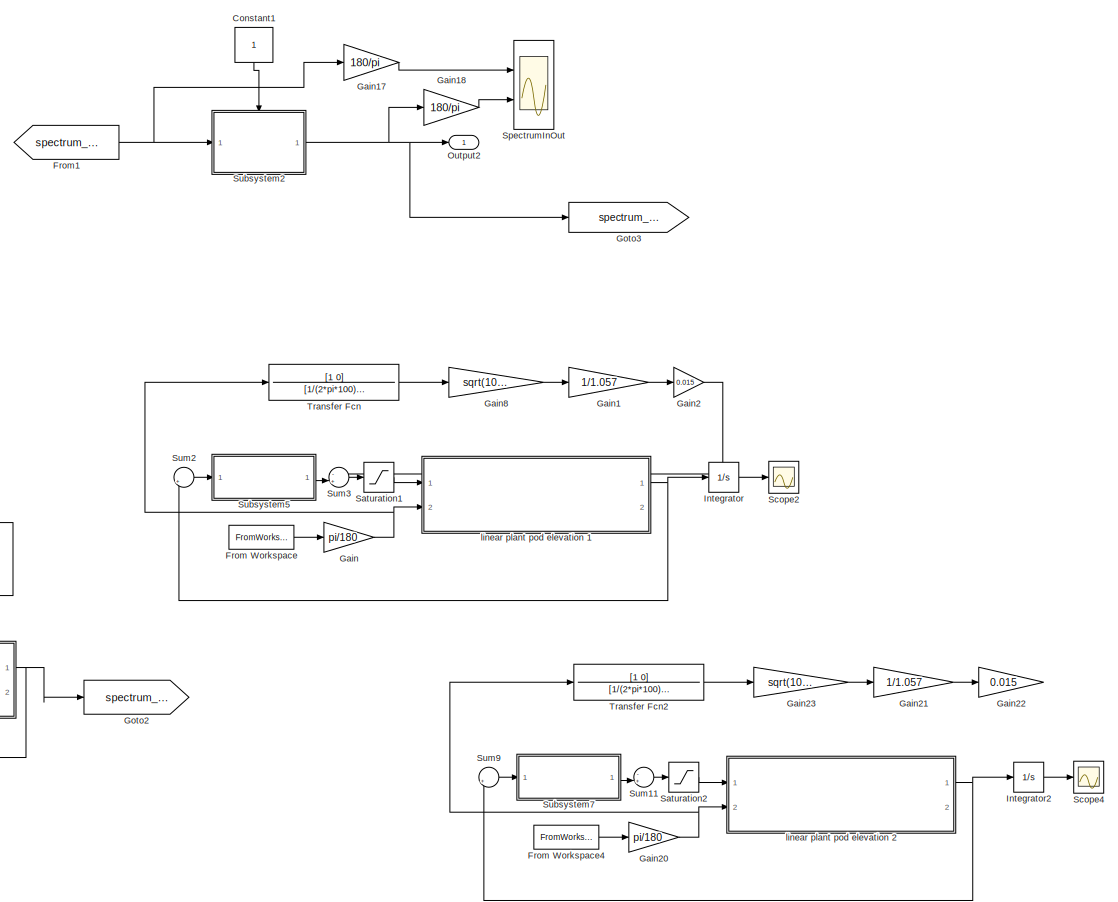
[diagram: root canvas - part 1/4, top center region]
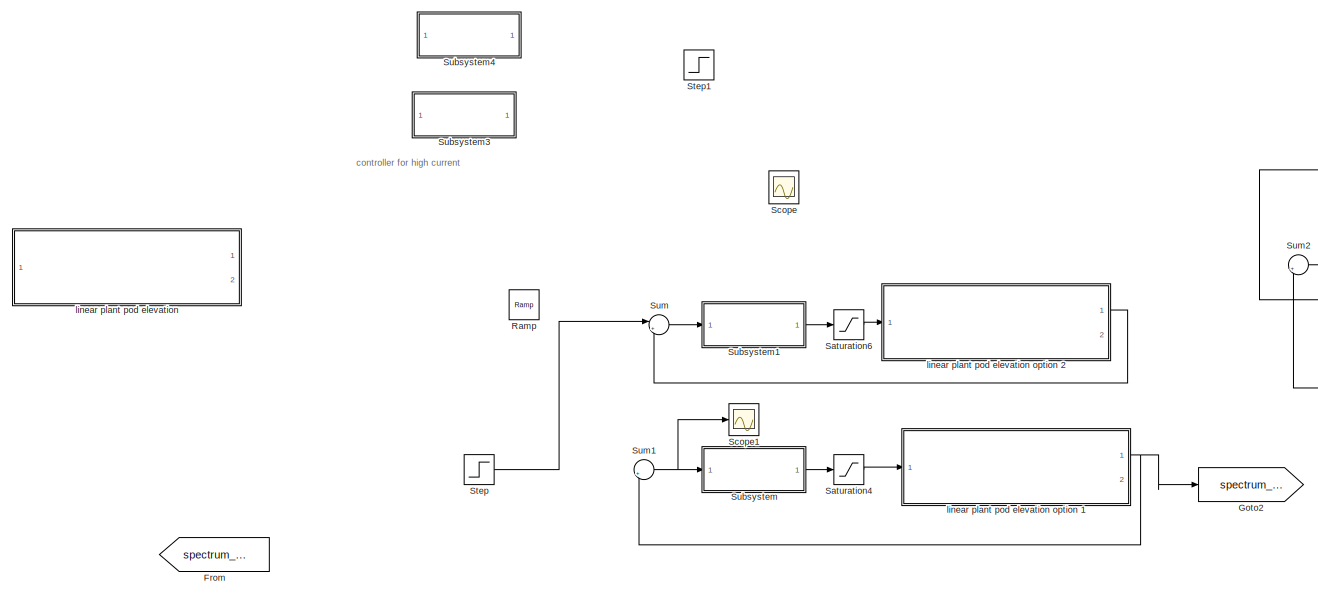
[diagram: root canvas - part 2/4, top left region]
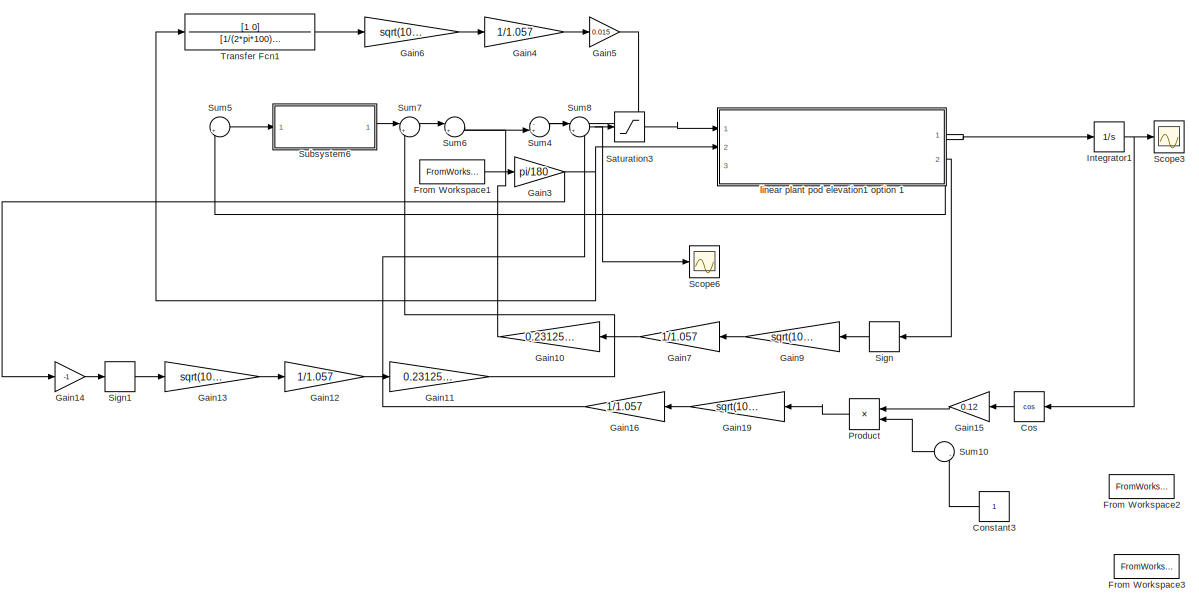
[diagram: root canvas - part 3/4, bottom left region]
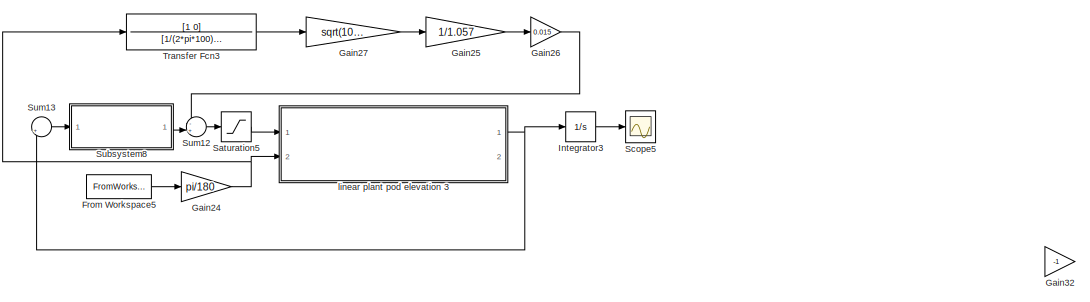
[diagram: root canvas - part 4/4, bottom right region]
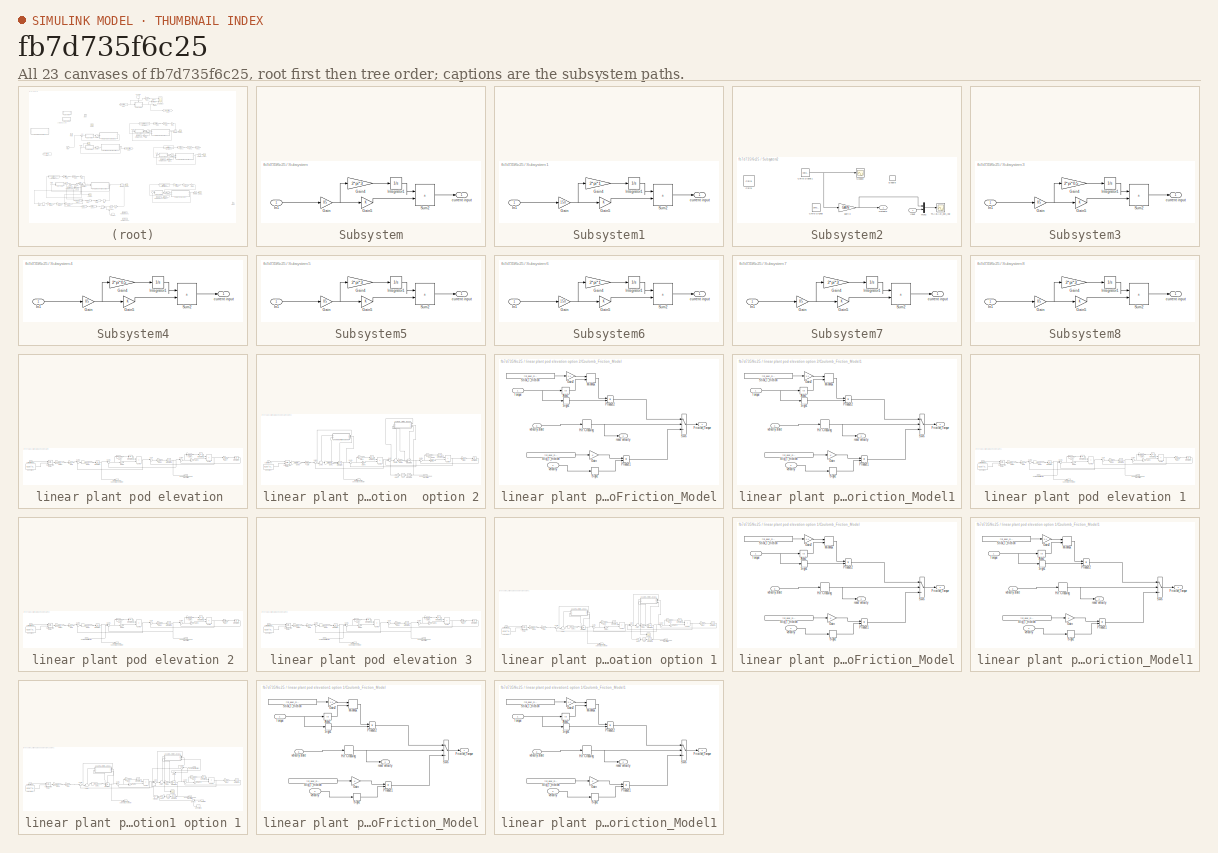
[diagram: thumbnail index - all 23 canvases of the model, root first then tree order]
MODEL slx_fb7d735f6c25
KIND model
CONFIG AbsTol = auto
CONFIG EnableMultiTasking = off
CONFIG FixedStep = auto
CONFIG MaxStep = auto
CONFIG MinStep = auto
CONFIG RelTol = 1e-3
CONFIG SampleTimeConstraint = Unconstrained
CONFIG SolverName = ode45
CONFIG StartTime = 0.0
CONFIG StopTime = 20
BLOCK [Constant] Constant1
  AttributesFormatString = 1 - START\n0 -STOP\ninternal spectrum
  NameLocation = left
  OpenFcn = if get_param(gcbh,'value')-48 set_param(gcbh,'value','0','backgroundcolor','red');\nelse set_param(gcbh,'value','1','backgroundcolor','green');                       \nend
  OutDataTypeStr = boolean
BLOCK [Constant] Constant3
BLOCK [Trigonometry] Cos
  Operator = cos
  Ports = [1, 1]
BLOCK [From] From
  GotoTag = spectrum_signal
BLOCK [FromWorkspace] From Workspace
  Interpolate = off
  OutputAfterFinalValue = Setting to zero
  SampleTime = ts3/3
  VariableName = eldist
  ZeroCross = off
BLOCK [FromWorkspace] From Workspace1
  Interpolate = off
  OutputAfterFinalValue = Setting to zero
  SampleTime = ts3/3
  VariableName = eldist
  ZeroCross = off
BLOCK [FromWorkspace] From Workspace2
  Interpolate = off
  OutputAfterFinalValue = Setting to zero
  SampleTime = ts3/3
  VariableName = gz
  ZeroCross = off
BLOCK [FromWorkspace] From Workspace3
  Interpolate = off
  OutputAfterFinalValue = Setting to zero
  SampleTime = ts3/9
  VariableName = firegz
  ZeroCross = off
BLOCK [FromWorkspace] From Workspace4
  Interpolate = off
  OutputAfterFinalValue = Setting to zero
  SampleTime = ts3/3
  VariableName = eldist
  ZeroCross = off
BLOCK [FromWorkspace] From Workspace5
  Interpolate = off
  OutputAfterFinalValue = Setting to zero
  SampleTime = ts3/3
  VariableName = eldist
  ZeroCross = off
BLOCK [From] From1
  GotoTag = spectrum_back
BLOCK [Gain] Gain
  Gain = pi/180
BLOCK [Gain] Gain1
  Gain = 1/1.057
BLOCK [Gain] Gain10
  Gain = 0.23125*0.42
BLOCK [Gain] Gain11
  Gain = 0.23125*0.42*0.7
BLOCK [Gain] Gain12
  Gain = 1/1.057
BLOCK [Gain] Gain13
  Gain = sqrt(10)/1.59
BLOCK [Gain] Gain14
  Gain = -1
BLOCK [Gain] Gain15
  Gain = 0.12
BLOCK [Gain] Gain16
  Gain = 1/1.057
BLOCK [Gain] Gain17
  Gain = 180/pi
BLOCK [Gain] Gain18
  Gain = 180/pi
BLOCK [Gain] Gain19
  Gain = sqrt(10)/1.59
BLOCK [Gain] Gain2
  Gain = 0.015
BLOCK [Gain] Gain20
  Gain = pi/180
BLOCK [Gain] Gain21
  Gain = 1/1.057
BLOCK [Gain] Gain22
  Gain = 0.015
BLOCK [Gain] Gain23
  Gain = sqrt(10)/1.59
BLOCK [Gain] Gain24
  Gain = pi/180
BLOCK [Gain] Gain25
  Gain = 1/1.057
BLOCK [Gain] Gain26
  Gain = 0.015
BLOCK [Gain] Gain27
  Gain = sqrt(10)/1.59
BLOCK [Gain] Gain3
  Gain = pi/180
BLOCK [Gain] Gain32
  Gain = -1
BLOCK [Gain] Gain4
  Gain = 1/1.057
BLOCK [Gain] Gain5
  Gain = 0.015
BLOCK [Gain] Gain6
  Gain = sqrt(10)/1.59
BLOCK [Gain] Gain7
  Gain = 1/1.057
BLOCK [Gain] Gain8
  Gain = sqrt(10)/1.59
BLOCK [Gain] Gain9
  Gain = sqrt(10)/1.59
BLOCK [Goto] Goto2
  GotoTag = spectrum_back
BLOCK [Goto] Goto3
  GotoTag = spectrum_signal
BLOCK [Integrator] Integrator
  Ports = [1, 1]
BLOCK [Integrator] Integrator1
  Ports = [1, 1]
BLOCK [Integrator] Integrator2
  Ports = [1, 1]
BLOCK [Integrator] Integrator3
  Ports = [1, 1]
BLOCK [Outport] Output2
BLOCK [Product] Product
  Ports = [2, 1]
BLOCK [Reference] Ramp  REF=simulink/Sources/Ramp
  Ports = [0, 1]
  SourceBlock = simulink/Sources/Ramp
  SourceProductBaseCode = SL
  SourceType = Ramp
BLOCK [Saturate] Saturation1
  LowerLimit = -11.933*sqrt(10)/1.59
  UpperLimit = 11.933*sqrt(10)/1.59
  ZeroCross = off
BLOCK [Saturate] Saturation2
  LowerLimit = -11.933*sqrt(10)/1.59
  UpperLimit = 11.933*sqrt(10)/1.59
  ZeroCross = off
BLOCK [Saturate] Saturation3
  LowerLimit = -11.933*sqrt(10)/1.59
  UpperLimit = 11.933*sqrt(10)/1.59
BLOCK [Saturate] Saturation4
  LowerLimit = -11.933*sqrt(10)/1.59
  UpperLimit = 11.933*sqrt(10)/1.59
  ZeroCross = off
BLOCK [Saturate] Saturation5
  LowerLimit = -11.933*sqrt(10)/1.59
  UpperLimit = 11.933*sqrt(10)/1.59
  ZeroCross = off
BLOCK [Saturate] Saturation6
  LowerLimit = -11.933*sqrt(10)*0.5/(1.59*0.52)
  UpperLimit = 11.933*sqrt(10)*0.5/(1.59*0.52)
  ZeroCross = off
BLOCK [Scope] Scope
  Floating = off
  NumInputPorts = 2
  Ports = [2]
  ScopeSpecificationString = Simulink.scopes.TimeScopeBlockCfg('CurrentConfiguration', extmgr.ConfigurationSet(extmgr.Configuration('Core','General UI',true),extmgr.Configuration('Core','Source UI',true),extmgr.Configuration('Sources','WiredSimulink',true),extmgr.Configuration('Visuals','Time Domain',true,'SerializedDisplays',{struct('MinYLimReal','-1.00000','MaxYLimReal','1.00000','YLabelReal','','MinYLimMag','0.00000','MaxY...<+2434ch>
BLOCK [Scope] Scope1
  Floating = off
  NumInputPorts = 1
  Ports = [1]
  ScopeSpecificationString = Simulink.scopes.TimeScopeBlockCfg('CurrentConfiguration', extmgr.ConfigurationSet(extmgr.Configuration('Core','General UI',true),extmgr.Configuration('Core','Source UI',true),extmgr.Configuration('Sources','WiredSimulink',true,'DataLoggingVariableName','ScopeData1'),extmgr.Configuration('Visuals','Time Domain',true,'SerializedDisplays',{struct('MinYLimReal','-0.14516','MaxYLimReal','1.30579','YLab...<+1748ch>
BLOCK [Scope] Scope2
  Floating = off
  NumInputPorts = 1
  Ports = [1]
  ScopeSpecificationString = Simulink.scopes.TimeScopeBlockCfg('CurrentConfiguration', extmgr.ConfigurationSet(extmgr.Configuration('Core','General UI',true),extmgr.Configuration('Core','Source UI',true),extmgr.Configuration('Sources','WiredSimulink',true,'DataLoggingVariableName','ScopeData2'),extmgr.Configuration('Visuals','Time Domain',true,'SerializedDisplays',{struct('MinYLimReal','-1.00000','MaxYLimReal','1.00000','YLab...<+1463ch>
BLOCK [Scope] Scope3
  Floating = off
  NumInputPorts = 1
  Ports = [1]
  ScopeSpecificationString = Simulink.scopes.TimeScopeBlockCfg('CurrentConfiguration', extmgr.ConfigurationSet(extmgr.Configuration('Core','General UI',true),extmgr.Configuration('Core','Source UI',true),extmgr.Configuration('Sources','WiredSimulink',true,'DataLoggingVariableName','ScopeData3'),extmgr.Configuration('Visuals','Time Domain',true,'SerializedDisplays',{struct('MinYLimReal','-0.000052','MaxYLimReal','0.000032','YL...<+1472ch>
BLOCK [Scope] Scope4
  Floating = off
  NumInputPorts = 1
  Ports = [1]
  ScopeSpecificationString = Simulink.scopes.TimeScopeBlockCfg('CurrentConfiguration', extmgr.ConfigurationSet(extmgr.Configuration('Core','General UI',true),extmgr.Configuration('Core','Source UI',true),extmgr.Configuration('Sources','WiredSimulink',true,'DataLoggingVariableName','ScopeData4'),extmgr.Configuration('Visuals','Time Domain',true,'SerializedDisplays',{struct('MinYLimReal','-1.00000','MaxYLimReal','1.00000','YLab...<+1464ch>
BLOCK [Scope] Scope5
  Floating = off
  NumInputPorts = 1
  Ports = [1]
  ScopeSpecificationString = Simulink.scopes.TimeScopeBlockCfg('CurrentConfiguration', extmgr.ConfigurationSet(extmgr.Configuration('Core','General UI',true),extmgr.Configuration('Core','Source UI',true),extmgr.Configuration('Sources','WiredSimulink',true,'DataLoggingVariableName','ScopeData1'),extmgr.Configuration('Visuals','Time Domain',true,'SerializedDisplays',{struct('MinYLimReal','-0.000039','MaxYLimReal','0.000015','YL...<+1472ch>
BLOCK [Scope] Scope6
  Floating = off
  NumInputPorts = 1
  Ports = [1]
  ScopeSpecificationString = Simulink.scopes.TimeScopeBlockCfg('CurrentConfiguration', extmgr.ConfigurationSet(extmgr.Configuration('Core','General UI',true),extmgr.Configuration('Core','Source UI',true),extmgr.Configuration('Sources','WiredSimulink',true,'DataLoggingVariableName','ScopeData1'),extmgr.Configuration('Visuals','Time Domain',true,'SerializedDisplays',{struct('MinYLimReal','-1.35942','MaxYLimReal','6.63765','YLab...<+1363ch>
BLOCK [Signum] Sign
BLOCK [Signum] Sign1
BLOCK [Scope] SpectrumInOut
  Floating = off
  NumInputPorts = 2
  Ports = [2]
  ScopeSpecificationString = Simulink.scopes.TimeScopeBlockCfg('CurrentConfiguration', extmgr.ConfigurationSet(extmgr.Configuration('Core','General UI',true),extmgr.Configuration('Core','Source UI',true),extmgr.Configuration('Sources','WiredSimulink',true,'DataLoggingVariableName','ScopeData1','SampleTime','0.001','DataLoggingSaveFormat','StructureWithTime'),extmgr.Configuration('Visuals','Time Domain',true,'SerializedDisplay...<+2448ch>
BLOCK [Step] Step
  SampleTime = 0
  ZeroCross = off
BLOCK [Step] Step1
  After = 22
  SampleTime = 0
BLOCK [SubSystem] Subsystem
  Ports = [1, 1]
  RequestExecContextInheritance = off
BLOCK [Gain] Subsystem/Gain
  Gain = 85
BLOCK [Gain] Subsystem/Gain4
  Gain = 2*pi*3
BLOCK [Gain] Subsystem/Gain5
BLOCK [Inport] Subsystem/In1
BLOCK [Integrator] Subsystem/Integrator1
  Ports = [1, 1]
BLOCK [Sum] Subsystem/Sum2
  IconShape = rectangular
  Inputs = |++
  Ports = [2, 1]
BLOCK [Outport] Subsystem/current input
BLOCK [SubSystem] Subsystem1
  Ports = [1, 1]
  RequestExecContextInheritance = off
BLOCK [Gain] Subsystem1/Gain
  Gain = 150
BLOCK [Gain] Subsystem1/Gain4
  Gain = 2*pi*1
BLOCK [Gain] Subsystem1/Gain5
BLOCK [Inport] Subsystem1/In1
BLOCK [Integrator] Subsystem1/Integrator1
  Ports = [1, 1]
BLOCK [Sum] Subsystem1/Sum2
  IconShape = rectangular
  Inputs = |++
  Ports = [2, 1]
BLOCK [Outport] Subsystem1/current input
BLOCK [SubSystem] Subsystem2
  Ports = [1, 1, 1]
  RequestExecContextInheritance = off
BLOCK [Reference] Subsystem2/Chirp  REF=dspsrcs4/Chirp
  Ports = [0, 1]
  SourceBlock = dspsrcs4/Chirp
  SourceProductBaseCode = DS
  SourceType = Chirp
BLOCK [Reference] Subsystem2/Chirp Signal  REF=simulink/Sources/Chirp Signal
  Commented = on
  Ports = [0, 1]
  SourceBlock = simulink/Sources/Chirp Signal
  SourceProductBaseCode = SL
  SourceType = chirp
BLOCK [Reference] Subsystem2/Chirp Signal1  REF=simulink/Sources/Chirp Signal
  Ports = [0, 1]
  SourceBlock = simulink/Sources/Chirp Signal
  SourceProductBaseCode = SL
  SourceType = chirp
BLOCK [EnablePort] Subsystem2/Enable
  Ports = []
  StatesWhenEnabling = reset
BLOCK [Inport] Subsystem2/Input
BLOCK [Mux] Subsystem2/Mux2
  DisplayOption = bar
  Inputs = 2
  Ports = [2, 1]
BLOCK [Outport] Subsystem2/Output2
BLOCK [Scope] Subsystem2/Scope2
  Floating = off
  NumInputPorts = 1
  Ports = [1]
  ScopeSpecificationString = Simulink.scopes.TimeScopeBlockCfg('CurrentConfiguration', extmgr.ConfigurationSet(extmgr.Configuration('Core','General UI',true),extmgr.Configuration('Core','Source UI',true),extmgr.Configuration('Sources','WiredSimulink',true,'DataLoggingVariableName','ScopeData3'),extmgr.Configuration('Visuals','Time Domain',true,'SerializedDisplays',{struct('MinYLimReal','-1.25','MaxYLimReal','1.25','YLabelReal...<+1427ch>
BLOCK [Scope] Subsystem2/TSABAD_out_log
  Floating = off
  NumInputPorts = 1
  Ports = [1]
  ScopeSpecificationString = Simulink.scopes.TimeScopeBlockCfg('CurrentConfiguration', extmgr.ConfigurationSet(extmgr.Configuration('Core','General UI',true),extmgr.Configuration('Core','Source UI',true),extmgr.Configuration('Sources','WiredSimulink',true,'DataLogging',true,'DataLoggingVariableName','TSABAD_out_log','DataLoggingSaveFormat','Array','DataLoggingDecimation','1','DataLoggingDecimateData',true,'SampleTime','0.001'...<+1754ch>
BLOCK [Gain] Subsystem2/gain 3
  Gain = GAIN
  OutDataTypeStr = Inherit: Same as input
  ParamDataTypeStr = Inherit: Same as input
  SampleTime = ts3/3
  SaturateOnIntegerOverflow = on
BLOCK [SubSystem] Subsystem3
  Ports = [1, 1]
  RequestExecContextInheritance = off
BLOCK [Gain] Subsystem3/Gain
  Gain = 85
BLOCK [Gain] Subsystem3/Gain4
  Gain = 2*pi*0.5
BLOCK [Gain] Subsystem3/Gain5
BLOCK [Inport] Subsystem3/In1
BLOCK [Integrator] Subsystem3/Integrator1
  Ports = [1, 1]
BLOCK [Sum] Subsystem3/Sum2
  IconShape = rectangular
  Inputs = |++
  Ports = [2, 1]
BLOCK [Outport] Subsystem3/current input
BLOCK [SubSystem] Subsystem4
  Ports = [1, 1]
  RequestExecContextInheritance = off
BLOCK [Gain] Subsystem4/Gain
  Gain = 85
BLOCK [Gain] Subsystem4/Gain4
  Gain = 2*pi*0.5
BLOCK [Gain] Subsystem4/Gain5
BLOCK [Inport] Subsystem4/In1
BLOCK [Integrator] Subsystem4/Integrator1
  Ports = [1, 1]
BLOCK [Sum] Subsystem4/Sum2
  IconShape = rectangular
  Inputs = |++
  Ports = [2, 1]
BLOCK [Outport] Subsystem4/current input
BLOCK [SubSystem] Subsystem5
  Ports = [1, 1]
  RequestExecContextInheritance = off
BLOCK [Gain] Subsystem5/Gain
  Gain = 85
BLOCK [Gain] Subsystem5/Gain4
  Gain = 2*pi*3
BLOCK [Gain] Subsystem5/Gain5
BLOCK [Inport] Subsystem5/In1
BLOCK [Integrator] Subsystem5/Integrator1
  Ports = [1, 1]
BLOCK [Sum] Subsystem5/Sum2
  IconShape = rectangular
  Inputs = |++
  Ports = [2, 1]
BLOCK [Outport] Subsystem5/current input
BLOCK [SubSystem] Subsystem6
  Ports = [1, 1]
  RequestExecContextInheritance = off
BLOCK [Gain] Subsystem6/Gain
  Gain = 150
BLOCK [Gain] Subsystem6/Gain4
  Gain = 2*pi*1
BLOCK [Gain] Subsystem6/Gain5
BLOCK [Inport] Subsystem6/In1
BLOCK [Integrator] Subsystem6/Integrator1
  Ports = [1, 1]
BLOCK [Sum] Subsystem6/Sum2
  IconShape = rectangular
  Inputs = |++
  Ports = [2, 1]
BLOCK [Outport] Subsystem6/current input
BLOCK [SubSystem] Subsystem7
  Ports = [1, 1]
  RequestExecContextInheritance = off
BLOCK [Gain] Subsystem7/Gain
  Gain = 85
BLOCK [Gain] Subsystem7/Gain4
  Gain = 2*pi*3
BLOCK [Gain] Subsystem7/Gain5
BLOCK [Inport] Subsystem7/In1
BLOCK [Integrator] Subsystem7/Integrator1
  Ports = [1, 1]
BLOCK [Sum] Subsystem7/Sum2
  IconShape = rectangular
  Inputs = |++
  Ports = [2, 1]
BLOCK [Outport] Subsystem7/current input
BLOCK [SubSystem] Subsystem8
  Ports = [1, 1]
  RequestExecContextInheritance = off
BLOCK [Gain] Subsystem8/Gain
  Gain = 85
BLOCK [Gain] Subsystem8/Gain4
  Gain = 2*pi*3
BLOCK [Gain] Subsystem8/Gain5
BLOCK [Inport] Subsystem8/In1
BLOCK [Integrator] Subsystem8/Integrator1
  Ports = [1, 1]
BLOCK [Sum] Subsystem8/Sum2
  IconShape = rectangular
  Inputs = |++
  Ports = [2, 1]
BLOCK [Outport] Subsystem8/current input
BLOCK [Sum] Sum
  Inputs = |+-
  Ports = [2, 1]
BLOCK [Sum] Sum1
  Inputs = |+-
  Ports = [2, 1]
BLOCK [Sum] Sum10
  Inputs = |-+
  Ports = [2, 1]
BLOCK [Sum] Sum11
  Inputs = -+|
  Ports = [2, 1]
BLOCK [Sum] Sum12
  Inputs = -+|
  Ports = [2, 1]
BLOCK [Sum] Sum13
  Inputs = |+-
  Ports = [2, 1]
BLOCK [Sum] Sum2
  Inputs = |+-
  Ports = [2, 1]
BLOCK [Sum] Sum3
  Inputs = -+|
  Ports = [2, 1]
BLOCK [Sum] Sum4
  Inputs = -+|
  Ports = [2, 1]
BLOCK [Sum] Sum5
  Inputs = |+-
  Ports = [2, 1]
BLOCK [Sum] Sum6
  Inputs = |++
  Ports = [2, 1]
BLOCK [Sum] Sum7
  Inputs = |++
  Ports = [2, 1]
BLOCK [Sum] Sum8
  Inputs = |++
  Ports = [2, 1]
BLOCK [Sum] Sum9
  Inputs = |+-
  Ports = [2, 1]
BLOCK [TransferFcn] Transfer Fcn
  Denominator = [1/(2*pi*100) 1]
  Numerator = [1 0]
BLOCK [TransferFcn] Transfer Fcn1
  Denominator = [1/(2*pi*100) 1]
  Numerator = [1 0]
BLOCK [TransferFcn] Transfer Fcn2
  Denominator = [1/(2*pi*100) 1]
  Numerator = [1 0]
BLOCK [TransferFcn] Transfer Fcn3
  Denominator = [1/(2*pi*100) 1]
  Numerator = [1 0]
BLOCK [SubSystem] linear plant pod elevation 
  Ports = [1, 2]
  RequestExecContextInheritance = off
BLOCK [SubSystem] linear plant pod elevation  option 2
  Ports = [1, 2]
  RequestExecContextInheritance = off
BLOCK [Constant] linear plant pod elevation  option 2/Constant
  SampleTime = -1
  Value = (6.2*10^-3/1.9)*1.5
BLOCK [Trigonometry] linear plant pod elevation  option 2/Cos
  Operator = cos
  Ports = [1, 1]
BLOCK [SubSystem] linear plant pod elevation  option 2/Coulomb_Friction_Model
  NameLocation = top
  Ports = [3, 2]
  RequestExecContextInheritance = off
BLOCK [Abs] linear plant pod elevation  option 2/Coulomb_Friction_Model/Abs2
  SaturateOnIntegerOverflow = off
  ZeroCross = off
BLOCK [Outport] linear plant pod elevation  option 2/Coulomb_Friction_Model/Friction_Torque
BLOCK [Gain] linear plant pod elevation  option 2/Coulomb_Friction_Model/Gain
BLOCK [Gain] linear plant pod elevation  option 2/Coulomb_Friction_Model/Gain2
  Gain = 1.1
BLOCK [HitCross] linear plant pod elevation  option 2/Coulomb_Friction_Model/Hit Crossing
  Ports = [1, 1]
  ZeroCross = off
BLOCK [MinMax] linear plant pod elevation  option 2/Coulomb_Friction_Model/MinMax
  Inputs = 2
  Ports = [2, 1]
BLOCK [Product] linear plant pod elevation  option 2/Coulomb_Friction_Model/Product1
  Ports = [2, 1]
  RndMeth = Zero
BLOCK [Product] linear plant pod elevation  option 2/Coulomb_Friction_Model/Product2
  Ports = [2, 1]
  RndMeth = Zero
BLOCK [Signum] linear plant pod elevation  option 2/Coulomb_Friction_Model/Sign1
  ZeroCross = off
BLOCK [Signum] linear plant pod elevation  option 2/Coulomb_Friction_Model/Sign2
  ZeroCross = off
BLOCK [Constant] linear plant pod elevation  option 2/Coulomb_Friction_Model/Slip_T_friction
  Value = fric_gear_motor_pod_elevation
BLOCK [Constant] linear plant pod elevation  option 2/Coulomb_Friction_Model/Stick_T_friction
  Value = fric_gear_motor_pod_elevation
BLOCK [Switch] linear plant pod elevation  option 2/Coulomb_Friction_Model/Sw6
  Threshold = 0.5
  ZeroCross = off
BLOCK [Inport] linear plant pod elevation  option 2/Coulomb_Friction_Model/Torque
BLOCK [Outport] linear plant pod elevation  option 2/Coulomb_Friction_Model/reset velocity
  Port = 2
BLOCK [Inport] linear plant pod elevation  option 2/Coulomb_Friction_Model/velocity
  Port = 2
BLOCK [Inport] linear plant pod elevation  option 2/Coulomb_Friction_Model/velocity state
  Port = 3
BLOCK [SubSystem] linear plant pod elevation  option 2/Coulomb_Friction_Model1
  NameLocation = top
  Ports = [3, 2]
  RequestExecContextInheritance = off
BLOCK [Abs] linear plant pod elevation  option 2/Coulomb_Friction_Model1/Abs2
  SaturateOnIntegerOverflow = off
  ZeroCross = off
BLOCK [Outport] linear plant pod elevation  option 2/Coulomb_Friction_Model1/Friction_Torque
BLOCK [Gain] linear plant pod elevation  option 2/Coulomb_Friction_Model1/Gain
BLOCK [Gain] linear plant pod elevation  option 2/Coulomb_Friction_Model1/Gain2
  Gain = 1.1
BLOCK [HitCross] linear plant pod elevation  option 2/Coulomb_Friction_Model1/Hit Crossing
  Ports = [1, 1]
  ZeroCross = off
BLOCK [MinMax] linear plant pod elevation  option 2/Coulomb_Friction_Model1/MinMax
  Inputs = 2
  Ports = [2, 1]
BLOCK [Product] linear plant pod elevation  option 2/Coulomb_Friction_Model1/Product1
  Ports = [2, 1]
  RndMeth = Zero
BLOCK [Product] linear plant pod elevation  option 2/Coulomb_Friction_Model1/Product2
  Ports = [2, 1]
  RndMeth = Zero
BLOCK [Signum] linear plant pod elevation  option 2/Coulomb_Friction_Model1/Sign1
  ZeroCross = off
BLOCK [Signum] linear plant pod elevation  option 2/Coulomb_Friction_Model1/Sign2
  ZeroCross = off
BLOCK [Constant] linear plant pod elevation  option 2/Coulomb_Friction_Model1/Slip_T_friction
  Value = fric_gear_motor_pod_elevation*0.7
BLOCK [Constant] linear plant pod elevation  option 2/Coulomb_Friction_Model1/Stick_T_friction
  Value = fric_gear_motor_pod_elevation*0.7
BLOCK [Switch] linear plant pod elevation  option 2/Coulomb_Friction_Model1/Sw6
  Threshold = 0.5
  ZeroCross = off
BLOCK [Inport] linear plant pod elevation  option 2/Coulomb_Friction_Model1/Torque
BLOCK [Outport] linear plant pod elevation  option 2/Coulomb_Friction_Model1/reset velocity
  Port = 2
BLOCK [Inport] linear plant pod elevation  option 2/Coulomb_Friction_Model1/velocity
  Port = 2
BLOCK [Inport] linear plant pod elevation  option 2/Coulomb_Friction_Model1/velocity state
  Port = 3
BLOCK [Gain] linear plant pod elevation  option 2/Gain
  Gain = 1.057
BLOCK [Gain] linear plant pod elevation  option 2/Gain1
  Gain = 1/0.015
BLOCK [Gain] linear plant pod elevation  option 2/Gain2
  Gain = 1/0.52
BLOCK [Gain] linear plant pod elevation  option 2/Gain3
  Gain = 43524*(0.52/0.5)
BLOCK [Gain] linear plant pod elevation  option 2/Gain4
  Gain = 652720*(0.52/0.5)
BLOCK [Gain] linear plant pod elevation  option 2/Gain5
  Gain = 300*(0.52/0.5)
BLOCK [Gain] linear plant pod elevation  option 2/Gain6
  Gain = 15*(0.52/0.5)
BLOCK [Gain] linear plant pod elevation  option 2/Gain7
  Gain = 1/(0.1*0.52/0.5)
BLOCK [Gain] linear plant pod elevation  option 2/Gain8
  Gain = 1.59*0.52/(sqrt(10)*0.5)
BLOCK [Gain] linear plant pod elevation  option 2/Gain9
  Gain = 0.23
BLOCK [Integrator] linear plant pod elevation  option 2/Integrator
  ExternalReset = rising
  Ports = [2, 1, 0, 0, 1]
  ShowStatePort = on
  ZeroCross = off
BLOCK [Integrator] linear plant pod elevation  option 2/Integrator1
  Ports = [1, 1]
BLOCK [Integrator] linear plant pod elevation  option 2/Integrator2
  ExternalReset = rising
  Ports = [2, 1, 0, 0, 1]
  ShowStatePort = on
  ZeroCross = off
BLOCK [Integrator] linear plant pod elevation  option 2/Integrator3
  Ports = [1, 1]
BLOCK [Integrator] linear plant pod elevation  option 2/Integrator4
  Ports = [1, 1]
BLOCK [Integrator] linear plant pod elevation  option 2/Integrator5
  Ports = [1, 1]
BLOCK [Sum] linear plant pod elevation  option 2/Sum
  Inputs = |+--
  Ports = [3, 1]
BLOCK [Sum] linear plant pod elevation  option 2/Sum1
  Inputs = |+-
  Ports = [2, 1]
BLOCK [Sum] linear plant pod elevation  option 2/Sum2
  IconShape = rectangular
  Inputs = |++
  Ports = [2, 1]
BLOCK [Sum] linear plant pod elevation  option 2/Sum3
  Inputs = |+-
  Ports = [2, 1]
BLOCK [Sum] linear plant pod elevation  option 2/Sum4
  Inputs = |+-
  Ports = [2, 1]
BLOCK [Sum] linear plant pod elevation  option 2/Sum5
  IconShape = rectangular
  Inputs = |++
  Ports = [2, 1]
BLOCK [Sum] linear plant pod elevation  option 2/Sum6
  Inputs = -+|
  Ports = [2, 1]
BLOCK [Sum] linear plant pod elevation  option 2/Sum7
  Inputs = -+|
  Ports = [2, 1]
BLOCK [VariableTransportDelay] linear plant pod elevation  option 2/Variable Time Delay
  MaximumDelay = 10
  Ports = [2, 1]
  TransDelayFeedthrough = on
BLOCK [Inport] linear plant pod elevation  option 2/current input
BLOCK [Outport] linear plant pod elevation  option 2/motor angular speed tachometer 
  Port = 2
BLOCK [Outport] linear plant pod elevation  option 2/pod angular speed elevation
BLOCK [Constant] linear plant pod elevation /Constant
  SampleTime = -1
  Value = (6.2*10^-3/1.9)*1.5
BLOCK [Gain] linear plant pod elevation /Gain
  Gain = 1.057
BLOCK [Gain] linear plant pod elevation /Gain1
  Gain = 1/0.015
BLOCK [Gain] linear plant pod elevation /Gain2
  Gain = 1/0.5
BLOCK [Gain] linear plant pod elevation /Gain3
  Gain = 43524
BLOCK [Gain] linear plant pod elevation /Gain4
  Gain = 652720
BLOCK [Gain] linear plant pod elevation /Gain5
  Gain = 300
BLOCK [Gain] linear plant pod elevation /Gain6
  Gain = 15
BLOCK [Gain] linear plant pod elevation /Gain7
  Gain = 1/0.1
BLOCK [Gain] linear plant pod elevation /Gain8
  Gain = 1.59/sqrt(10)
BLOCK [Integrator] linear plant pod elevation /Integrator
  Ports = [1, 1]
BLOCK [Integrator] linear plant pod elevation /Integrator1
  Ports = [1, 1]
BLOCK [Integrator] linear plant pod elevation /Integrator2
  Ports = [1, 1]
BLOCK [Integrator] linear plant pod elevation /Integrator3
  Ports = [1, 1]
BLOCK [Integrator] linear plant pod elevation /Integrator4
  Ports = [1, 1]
BLOCK [Sum] linear plant pod elevation /Sum
  Inputs = |+-
  Ports = [2, 1]
BLOCK [Sum] linear plant pod elevation /Sum1
  Inputs = |+-
  Ports = [2, 1]
BLOCK [Sum] linear plant pod elevation /Sum2
  IconShape = rectangular
  Inputs = |++
  Ports = [2, 1]
BLOCK [Sum] linear plant pod elevation /Sum3
  Inputs = |+-
  Ports = [2, 1]
BLOCK [Sum] linear plant pod elevation /Sum4
  Inputs = |+-
  Ports = [2, 1]
BLOCK [Sum] linear plant pod elevation /Sum5
  IconShape = rectangular
  Inputs = |++
  Ports = [2, 1]
BLOCK [VariableTransportDelay] linear plant pod elevation /Variable Time Delay
  MaximumDelay = 10
  Ports = [2, 1]
  TransDelayFeedthrough = on
BLOCK [Inport] linear plant pod elevation /current input
BLOCK [Outport] linear plant pod elevation /motor angular speed tachometer 
  Port = 2
BLOCK [Outport] linear plant pod elevation /pod angular speed elevation
BLOCK [SubSystem] linear plant pod elevation 1
  Ports = [2, 2]
  RequestExecContextInheritance = off
BLOCK [Constant] linear plant pod elevation 1/Constant
  SampleTime = -1
  Value = (6.2*10^-3/1.9)*1.5
BLOCK [Gain] linear plant pod elevation 1/Gain
  Gain = 1.057
BLOCK [Gain] linear plant pod elevation 1/Gain1
  Gain = 1/0.015
BLOCK [Gain] linear plant pod elevation 1/Gain2
  Gain = 1/0.5
BLOCK [Gain] linear plant pod elevation 1/Gain3
  Gain = 43524
BLOCK [Gain] linear plant pod elevation 1/Gain4
  Gain = 652720
BLOCK [Gain] linear plant pod elevation 1/Gain5
  Gain = 300
BLOCK [Gain] linear plant pod elevation 1/Gain6
  Gain = 15
BLOCK [Gain] linear plant pod elevation 1/Gain7
  Gain = 1/0.1
BLOCK [Gain] linear plant pod elevation 1/Gain8
  Gain = 1.59/sqrt(10)
BLOCK [Integrator] linear plant pod elevation 1/Integrator
  Ports = [1, 1]
BLOCK [Integrator] linear plant pod elevation 1/Integrator1
  Ports = [1, 1]
BLOCK [Integrator] linear plant pod elevation 1/Integrator2
  Ports = [1, 1]
BLOCK [Integrator] linear plant pod elevation 1/Integrator3
  Ports = [1, 1]
BLOCK [Integrator] linear plant pod elevation 1/Integrator4
  Ports = [1, 1]
BLOCK [Sum] linear plant pod elevation 1/Sum
  Inputs = |+-
  Ports = [2, 1]
BLOCK [Sum] linear plant pod elevation 1/Sum1
  Inputs = |++-
  Ports = [3, 1]
BLOCK [Sum] linear plant pod elevation 1/Sum2
  IconShape = rectangular
  Inputs = |++
  Ports = [2, 1]
BLOCK [Sum] linear plant pod elevation 1/Sum3
  Inputs = |+-
  Ports = [2, 1]
BLOCK [Sum] linear plant pod elevation 1/Sum4
  Inputs = |+-
  Ports = [2, 1]
BLOCK [Sum] linear plant pod elevation 1/Sum5
  IconShape = rectangular
  Inputs = |++
  Ports = [2, 1]
BLOCK [VariableTransportDelay] linear plant pod elevation 1/Variable Time Delay
  MaximumDelay = 10
  Ports = [2, 1]
  TransDelayFeedthrough = on
BLOCK [Inport] linear plant pod elevation 1/current input
BLOCK [Inport] linear plant pod elevation 1/external distribution
  Port = 2
BLOCK [Outport] linear plant pod elevation 1/motor angular speed tachometer 
  Port = 2
BLOCK [Outport] linear plant pod elevation 1/pod angular speed elevation
BLOCK [SubSystem] linear plant pod elevation 2
  Ports = [2, 2]
  RequestExecContextInheritance = off
BLOCK [Constant] linear plant pod elevation 2/Constant
  SampleTime = -1
  Value = (6.2*10^-3/1.9)*1.5
BLOCK [Gain] linear plant pod elevation 2/Gain
  Gain = 1.057
BLOCK [Gain] linear plant pod elevation 2/Gain1
  Gain = 1/0.015
BLOCK [Gain] linear plant pod elevation 2/Gain2
  Gain = 1/0.52
BLOCK [Gain] linear plant pod elevation 2/Gain3
  Gain = 43524*(0.52/0.5)
BLOCK [Gain] linear plant pod elevation 2/Gain4
  Gain = 652720*(0.52/0.5)
BLOCK [Gain] linear plant pod elevation 2/Gain5
  Gain = 300*(0.52/0.5)
BLOCK [Gain] linear plant pod elevation 2/Gain6
  Gain = 15*(0.52/0.5)
BLOCK [Gain] linear plant pod elevation 2/Gain7
  Gain = 0.52/(0.1*0.5)
BLOCK [Gain] linear plant pod elevation 2/Gain8
  Gain = 1.59/sqrt(10)
BLOCK [Integrator] linear plant pod elevation 2/Integrator
  Ports = [1, 1]
BLOCK [Integrator] linear plant pod elevation 2/Integrator1
  Ports = [1, 1]
BLOCK [Integrator] linear plant pod elevation 2/Integrator2
  Ports = [1, 1]
BLOCK [Integrator] linear plant pod elevation 2/Integrator3
  Ports = [1, 1]
BLOCK [Integrator] linear plant pod elevation 2/Integrator4
  Ports = [1, 1]
BLOCK [Sum] linear plant pod elevation 2/Sum
  Inputs = |+-
  Ports = [2, 1]
BLOCK [Sum] linear plant pod elevation 2/Sum1
  Inputs = |++-
  Ports = [3, 1]
BLOCK [Sum] linear plant pod elevation 2/Sum2
  IconShape = rectangular
  Inputs = |++
  Ports = [2, 1]
BLOCK [Sum] linear plant pod elevation 2/Sum3
  Inputs = |+-
  Ports = [2, 1]
BLOCK [Sum] linear plant pod elevation 2/Sum4
  Inputs = |+-
  Ports = [2, 1]
BLOCK [Sum] linear plant pod elevation 2/Sum5
  IconShape = rectangular
  Inputs = |++
  Ports = [2, 1]
BLOCK [VariableTransportDelay] linear plant pod elevation 2/Variable Time Delay
  MaximumDelay = 10
  Ports = [2, 1]
  TransDelayFeedthrough = on
BLOCK [Inport] linear plant pod elevation 2/current input
BLOCK [Inport] linear plant pod elevation 2/external distribution
  Port = 2
BLOCK [Outport] linear plant pod elevation 2/motor angular speed tachometer 
  Port = 2
BLOCK [Outport] linear plant pod elevation 2/pod angular speed elevation
BLOCK [SubSystem] linear plant pod elevation 3
  Ports = [2, 2]
  RequestExecContextInheritance = off
BLOCK [Constant] linear plant pod elevation 3/Constant
  SampleTime = -1
  Value = (6.2*10^-3/1.9)*1.5
BLOCK [Gain] linear plant pod elevation 3/Gain
  Gain = 1.057
BLOCK [Gain] linear plant pod elevation 3/Gain1
  Gain = 1/0.015
BLOCK [Gain] linear plant pod elevation 3/Gain2
  Gain = 1/0.52
BLOCK [Gain] linear plant pod elevation 3/Gain3
  Gain = 43524*(0.52/0.5)
BLOCK [Gain] linear plant pod elevation 3/Gain4
  Gain = 652720*(0.52/0.5)
BLOCK [Gain] linear plant pod elevation 3/Gain5
  Gain = 300*(0.52/0.5)
BLOCK [Gain] linear plant pod elevation 3/Gain6
  Gain = 15*(0.52/0.5)
BLOCK [Gain] linear plant pod elevation 3/Gain7
  Gain = 0.52/(0.1*0.5)
BLOCK [Gain] linear plant pod elevation 3/Gain8
  Gain = 1.59/sqrt(10)
BLOCK [Integrator] linear plant pod elevation 3/Integrator
  Ports = [1, 1]
BLOCK [Integrator] linear plant pod elevation 3/Integrator1
  Ports = [1, 1]
BLOCK [Integrator] linear plant pod elevation 3/Integrator2
  Ports = [1, 1]
BLOCK [Integrator] linear plant pod elevation 3/Integrator3
  Ports = [1, 1]
BLOCK [Integrator] linear plant pod elevation 3/Integrator4
  Ports = [1, 1]
BLOCK [Sum] linear plant pod elevation 3/Sum
  Inputs = |+-
  Ports = [2, 1]
BLOCK [Sum] linear plant pod elevation 3/Sum1
  Inputs = |++-
  Ports = [3, 1]
BLOCK [Sum] linear plant pod elevation 3/Sum2
  IconShape = rectangular
  Inputs = |++
  Ports = [2, 1]
BLOCK [Sum] linear plant pod elevation 3/Sum3
  Inputs = |+-
  Ports = [2, 1]
BLOCK [Sum] linear plant pod elevation 3/Sum4
  Inputs = |+-
  Ports = [2, 1]
BLOCK [Sum] linear plant pod elevation 3/Sum5
  IconShape = rectangular
  Inputs = |++
  Ports = [2, 1]
BLOCK [VariableTransportDelay] linear plant pod elevation 3/Variable Time Delay
  MaximumDelay = 10
  Ports = [2, 1]
  TransDelayFeedthrough = on
BLOCK [Inport] linear plant pod elevation 3/current input
BLOCK [Inport] linear plant pod elevation 3/external distribution
  Port = 2
BLOCK [Outport] linear plant pod elevation 3/motor angular speed tachometer 
  Port = 2
BLOCK [Outport] linear plant pod elevation 3/pod angular speed elevation
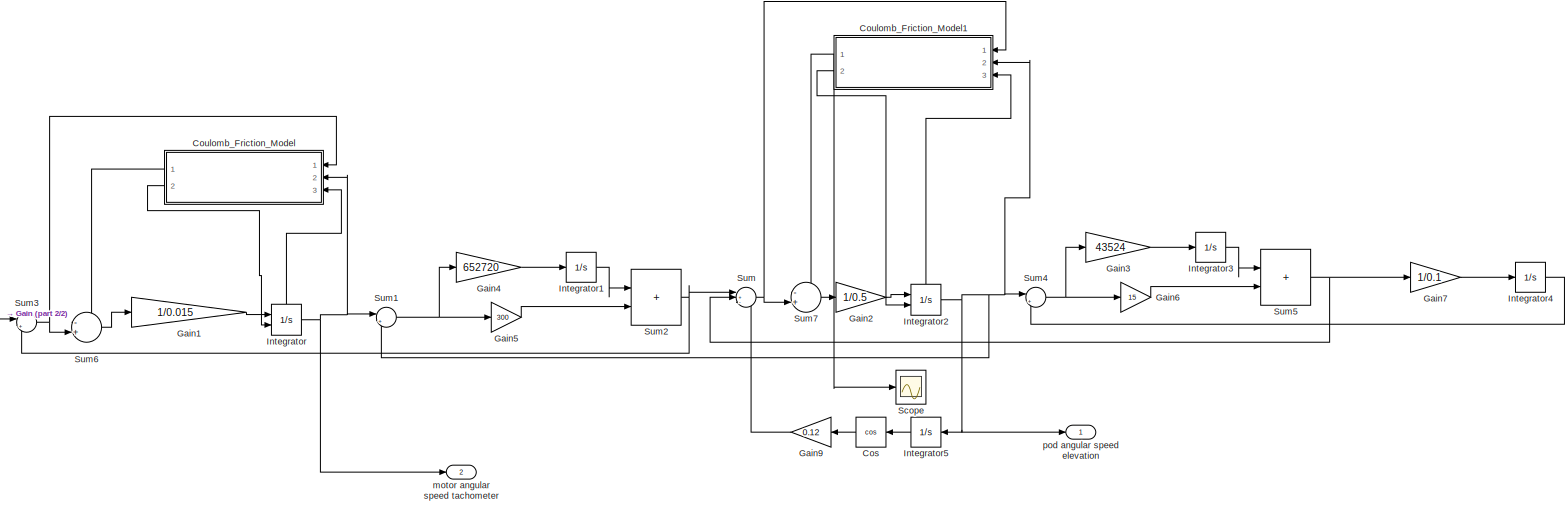
[diagram: linear plant pod elevation option 1 - part 1/2, most of the canvas]
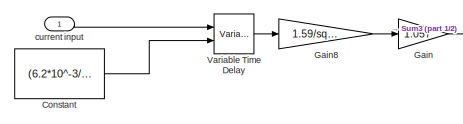
[diagram: linear plant pod elevation option 1 - part 2/2, bottom left region]
BLOCK [SubSystem] linear plant pod elevation option 1
  Ports = [1, 2]
  RequestExecContextInheritance = off
BLOCK [Constant] linear plant pod elevation option 1/Constant
  SampleTime = -1
  Value = (6.2*10^-3/1.9)*1.5
BLOCK [Trigonometry] linear plant pod elevation option 1/Cos
  Operator = cos
  Ports = [1, 1]
BLOCK [SubSystem] linear plant pod elevation option 1/Coulomb_Friction_Model
  NameLocation = top
  Ports = [3, 2]
  RequestExecContextInheritance = off
BLOCK [Abs] linear plant pod elevation option 1/Coulomb_Friction_Model/Abs2
  SaturateOnIntegerOverflow = off
  ZeroCross = off
BLOCK [Outport] linear plant pod elevation option 1/Coulomb_Friction_Model/Friction_Torque
BLOCK [Gain] linear plant pod elevation option 1/Coulomb_Friction_Model/Gain
BLOCK [Gain] linear plant pod elevation option 1/Coulomb_Friction_Model/Gain2
  Gain = 1.1
BLOCK [HitCross] linear plant pod elevation option 1/Coulomb_Friction_Model/Hit Crossing
  Ports = [1, 1]
  ZeroCross = off
BLOCK [MinMax] linear plant pod elevation option 1/Coulomb_Friction_Model/MinMax
  Inputs = 2
  Ports = [2, 1]
BLOCK [Product] linear plant pod elevation option 1/Coulomb_Friction_Model/Product1
  Ports = [2, 1]
  RndMeth = Zero
BLOCK [Product] linear plant pod elevation option 1/Coulomb_Friction_Model/Product2
  Ports = [2, 1]
  RndMeth = Zero
BLOCK [Signum] linear plant pod elevation option 1/Coulomb_Friction_Model/Sign1
  ZeroCross = off
BLOCK [Signum] linear plant pod elevation option 1/Coulomb_Friction_Model/Sign2
  ZeroCross = off
BLOCK [Constant] linear plant pod elevation option 1/Coulomb_Friction_Model/Slip_T_friction
  Value = fric_gear_motor_pod_elevation
BLOCK [Constant] linear plant pod elevation option 1/Coulomb_Friction_Model/Stick_T_friction
  Value = fric_gear_motor_pod_elevation
BLOCK [Switch] linear plant pod elevation option 1/Coulomb_Friction_Model/Sw6
  Threshold = 0.5
  ZeroCross = off
BLOCK [Inport] linear plant pod elevation option 1/Coulomb_Friction_Model/Torque
BLOCK [Outport] linear plant pod elevation option 1/Coulomb_Friction_Model/reset velocity
  Port = 2
BLOCK [Inport] linear plant pod elevation option 1/Coulomb_Friction_Model/velocity
  Port = 2
BLOCK [Inport] linear plant pod elevation option 1/Coulomb_Friction_Model/velocity state
  Port = 3
BLOCK [SubSystem] linear plant pod elevation option 1/Coulomb_Friction_Model1
  NameLocation = top
  Ports = [3, 2]
  RequestExecContextInheritance = off
BLOCK [Abs] linear plant pod elevation option 1/Coulomb_Friction_Model1/Abs2
  SaturateOnIntegerOverflow = off
  ZeroCross = off
BLOCK [Outport] linear plant pod elevation option 1/Coulomb_Friction_Model1/Friction_Torque
BLOCK [Gain] linear plant pod elevation option 1/Coulomb_Friction_Model1/Gain
BLOCK [Gain] linear plant pod elevation option 1/Coulomb_Friction_Model1/Gain2
  Gain = 1.1
BLOCK [HitCross] linear plant pod elevation option 1/Coulomb_Friction_Model1/Hit Crossing
  Ports = [1, 1]
  ZeroCross = off
BLOCK [MinMax] linear plant pod elevation option 1/Coulomb_Friction_Model1/MinMax
  Inputs = 2
  Ports = [2, 1]
BLOCK [Product] linear plant pod elevation option 1/Coulomb_Friction_Model1/Product1
  Ports = [2, 1]
  RndMeth = Zero
BLOCK [Product] linear plant pod elevation option 1/Coulomb_Friction_Model1/Product2
  Ports = [2, 1]
  RndMeth = Zero
BLOCK [Signum] linear plant pod elevation option 1/Coulomb_Friction_Model1/Sign1
  ZeroCross = off
BLOCK [Signum] linear plant pod elevation option 1/Coulomb_Friction_Model1/Sign2
  ZeroCross = off
BLOCK [Constant] linear plant pod elevation option 1/Coulomb_Friction_Model1/Slip_T_friction
  Value = fric_gear_motor_pod_elevation*0.7
BLOCK [Constant] linear plant pod elevation option 1/Coulomb_Friction_Model1/Stick_T_friction
  Value = fric_gear_motor_pod_elevation*0.7
BLOCK [Switch] linear plant pod elevation option 1/Coulomb_Friction_Model1/Sw6
  Threshold = 0.5
  ZeroCross = off
BLOCK [Inport] linear plant pod elevation option 1/Coulomb_Friction_Model1/Torque
BLOCK [Outport] linear plant pod elevation option 1/Coulomb_Friction_Model1/reset velocity
  Port = 2
BLOCK [Inport] linear plant pod elevation option 1/Coulomb_Friction_Model1/velocity
  Port = 2
BLOCK [Inport] linear plant pod elevation option 1/Coulomb_Friction_Model1/velocity state
  Port = 3
BLOCK [Gain] linear plant pod elevation option 1/Gain
  Gain = 1.057
BLOCK [Gain] linear plant pod elevation option 1/Gain1
  Gain = 1/0.015
BLOCK [Gain] linear plant pod elevation option 1/Gain2
  Gain = 1/0.5
BLOCK [Gain] linear plant pod elevation option 1/Gain3
  Gain = 43524
BLOCK [Gain] linear plant pod elevation option 1/Gain4
  Gain = 652720
BLOCK [Gain] linear plant pod elevation option 1/Gain5
  Gain = 300
BLOCK [Gain] linear plant pod elevation option 1/Gain6
  Gain = 15
BLOCK [Gain] linear plant pod elevation option 1/Gain7
  Gain = 1/0.1
BLOCK [Gain] linear plant pod elevation option 1/Gain8
  Gain = 1.59/sqrt(10)
BLOCK [Gain] linear plant pod elevation option 1/Gain9
  Gain = 0.12
BLOCK [Integrator] linear plant pod elevation option 1/Integrator
  ExternalReset = rising
  Ports = [2, 1, 0, 0, 1]
  ShowStatePort = on
  ZeroCross = off
BLOCK [Integrator] linear plant pod elevation option 1/Integrator1
  Ports = [1, 1]
BLOCK [Integrator] linear plant pod elevation option 1/Integrator2
  ExternalReset = rising
  Ports = [2, 1, 0, 0, 1]
  ShowStatePort = on
  ZeroCross = off
BLOCK [Integrator] linear plant pod elevation option 1/Integrator3
  Ports = [1, 1]
BLOCK [Integrator] linear plant pod elevation option 1/Integrator4
  Ports = [1, 1]
BLOCK [Integrator] linear plant pod elevation option 1/Integrator5
  Ports = [1, 1]
BLOCK [Scope] linear plant pod elevation option 1/Scope
  Floating = off
  NumInputPorts = 1
  Ports = [1]
  ScopeSpecificationString = Simulink.scopes.TimeScopeBlockCfg('CurrentConfiguration', extmgr.ConfigurationSet(extmgr.Configuration('Core','General UI',true),extmgr.Configuration('Core','Source UI',true),extmgr.Configuration('Sources','WiredSimulink',true,'DataLoggingVariableName','ScopeData2'),extmgr.Configuration('Visuals','Time Domain',true,'SerializedDisplays',{struct('MinYLimReal','-0.18842','MaxYLimReal','0.49577','YLab...<+1455ch>
BLOCK [Sum] linear plant pod elevation option 1/Sum
  Inputs = |+--
  Ports = [3, 1]
BLOCK [Sum] linear plant pod elevation option 1/Sum1
  Inputs = |+-
  Ports = [2, 1]
BLOCK [Sum] linear plant pod elevation option 1/Sum2
  IconShape = rectangular
  Inputs = |++
  Ports = [2, 1]
BLOCK [Sum] linear plant pod elevation option 1/Sum3
  Inputs = |+-
  Ports = [2, 1]
BLOCK [Sum] linear plant pod elevation option 1/Sum4
  Inputs = |+-
  Ports = [2, 1]
BLOCK [Sum] linear plant pod elevation option 1/Sum5
  IconShape = rectangular
  Inputs = |++
  Ports = [2, 1]
BLOCK [Sum] linear plant pod elevation option 1/Sum6
  Inputs = -+|
  Ports = [2, 1]
BLOCK [Sum] linear plant pod elevation option 1/Sum7
  Inputs = -+|
  Ports = [2, 1]
BLOCK [VariableTransportDelay] linear plant pod elevation option 1/Variable Time Delay
  MaximumDelay = 10
  Ports = [2, 1]
  TransDelayFeedthrough = on
BLOCK [Inport] linear plant pod elevation option 1/current input
BLOCK [Outport] linear plant pod elevation option 1/motor angular speed tachometer 
  Port = 2
BLOCK [Outport] linear plant pod elevation option 1/pod angular speed elevation
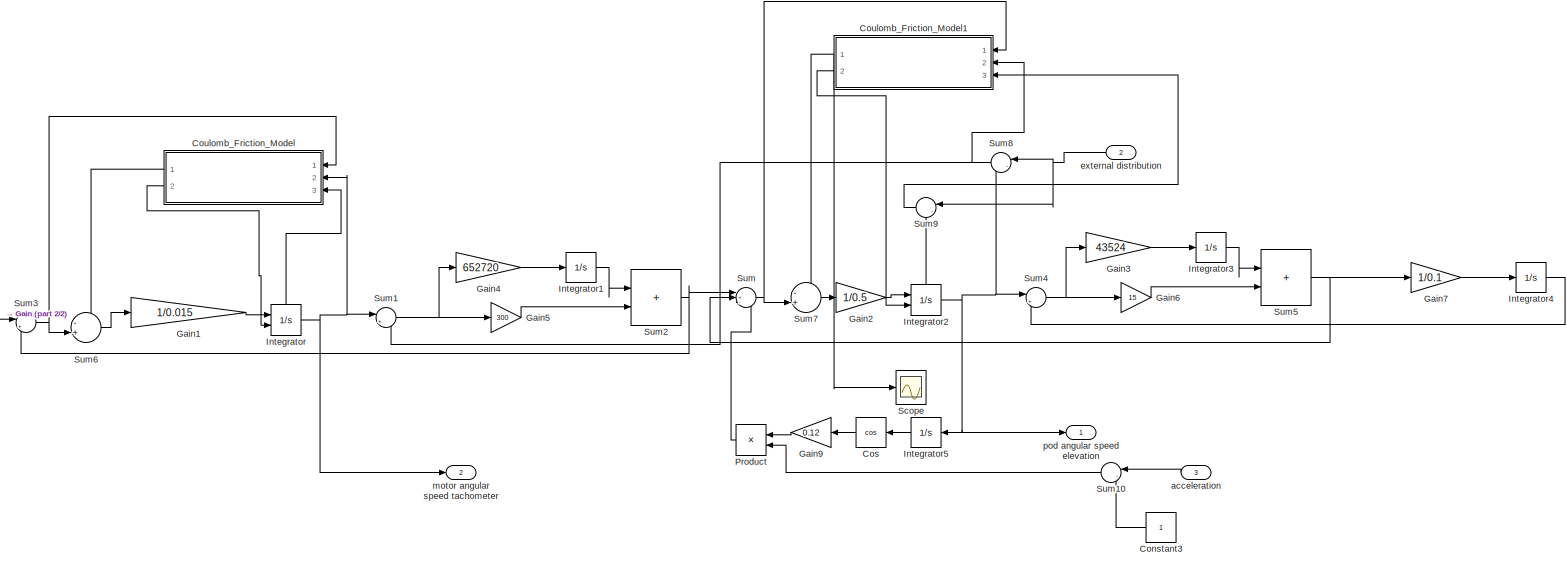
[diagram: linear plant pod elevation1 option 1 - part 1/2, most of the canvas]
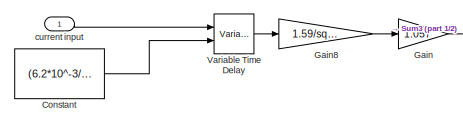
[diagram: linear plant pod elevation1 option 1 - part 2/2, middle left region]
BLOCK [SubSystem] linear plant pod elevation1 option 1
  Ports = [3, 2]
  RequestExecContextInheritance = off
BLOCK [Constant] linear plant pod elevation1 option 1/Constant
  SampleTime = -1
  Value = (6.2*10^-3/1.9)*1.5
BLOCK [Constant] linear plant pod elevation1 option 1/Constant3
BLOCK [Trigonometry] linear plant pod elevation1 option 1/Cos
  Operator = cos
  Ports = [1, 1]
BLOCK [SubSystem] linear plant pod elevation1 option 1/Coulomb_Friction_Model
  NameLocation = top
  Ports = [3, 2]
  RequestExecContextInheritance = off
BLOCK [Abs] linear plant pod elevation1 option 1/Coulomb_Friction_Model/Abs2
  SaturateOnIntegerOverflow = off
  ZeroCross = off
BLOCK [Outport] linear plant pod elevation1 option 1/Coulomb_Friction_Model/Friction_Torque
BLOCK [Gain] linear plant pod elevation1 option 1/Coulomb_Friction_Model/Gain
BLOCK [Gain] linear plant pod elevation1 option 1/Coulomb_Friction_Model/Gain2
  Gain = 1.1
BLOCK [HitCross] linear plant pod elevation1 option 1/Coulomb_Friction_Model/Hit Crossing
  Ports = [1, 1]
  ZeroCross = off
BLOCK [MinMax] linear plant pod elevation1 option 1/Coulomb_Friction_Model/MinMax
  Inputs = 2
  Ports = [2, 1]
BLOCK [Product] linear plant pod elevation1 option 1/Coulomb_Friction_Model/Product1
  Ports = [2, 1]
  RndMeth = Zero
BLOCK [Product] linear plant pod elevation1 option 1/Coulomb_Friction_Model/Product2
  Ports = [2, 1]
  RndMeth = Zero
BLOCK [Signum] linear plant pod elevation1 option 1/Coulomb_Friction_Model/Sign1
  ZeroCross = off
BLOCK [Signum] linear plant pod elevation1 option 1/Coulomb_Friction_Model/Sign2
  ZeroCross = off
BLOCK [Constant] linear plant pod elevation1 option 1/Coulomb_Friction_Model/Slip_T_friction
  Value = fric_gear_motor_pod_elevation
BLOCK [Constant] linear plant pod elevation1 option 1/Coulomb_Friction_Model/Stick_T_friction
  Value = fric_gear_motor_pod_elevation
BLOCK [Switch] linear plant pod elevation1 option 1/Coulomb_Friction_Model/Sw6
  Threshold = 0.5
  ZeroCross = off
BLOCK [Inport] linear plant pod elevation1 option 1/Coulomb_Friction_Model/Torque
BLOCK [Outport] linear plant pod elevation1 option 1/Coulomb_Friction_Model/reset velocity
  Port = 2
BLOCK [Inport] linear plant pod elevation1 option 1/Coulomb_Friction_Model/velocity
  Port = 2
BLOCK [Inport] linear plant pod elevation1 option 1/Coulomb_Friction_Model/velocity state
  Port = 3
BLOCK [SubSystem] linear plant pod elevation1 option 1/Coulomb_Friction_Model1
  NameLocation = top
  Ports = [3, 2]
  RequestExecContextInheritance = off
BLOCK [Abs] linear plant pod elevation1 option 1/Coulomb_Friction_Model1/Abs2
  SaturateOnIntegerOverflow = off
  ZeroCross = off
BLOCK [Outport] linear plant pod elevation1 option 1/Coulomb_Friction_Model1/Friction_Torque
BLOCK [Gain] linear plant pod elevation1 option 1/Coulomb_Friction_Model1/Gain
BLOCK [Gain] linear plant pod elevation1 option 1/Coulomb_Friction_Model1/Gain2
  Gain = 1.1
BLOCK [HitCross] linear plant pod elevation1 option 1/Coulomb_Friction_Model1/Hit Crossing
  Ports = [1, 1]
  ZeroCross = off
BLOCK [MinMax] linear plant pod elevation1 option 1/Coulomb_Friction_Model1/MinMax
  Inputs = 2
  Ports = [2, 1]
BLOCK [Product] linear plant pod elevation1 option 1/Coulomb_Friction_Model1/Product1
  Ports = [2, 1]
  RndMeth = Zero
BLOCK [Product] linear plant pod elevation1 option 1/Coulomb_Friction_Model1/Product2
  Ports = [2, 1]
  RndMeth = Zero
BLOCK [Signum] linear plant pod elevation1 option 1/Coulomb_Friction_Model1/Sign1
  ZeroCross = off
BLOCK [Signum] linear plant pod elevation1 option 1/Coulomb_Friction_Model1/Sign2
  ZeroCross = off
BLOCK [Constant] linear plant pod elevation1 option 1/Coulomb_Friction_Model1/Slip_T_friction
  Value = fric_gear_motor_pod_elevation*0.7
BLOCK [Constant] linear plant pod elevation1 option 1/Coulomb_Friction_Model1/Stick_T_friction
  Value = fric_gear_motor_pod_elevation*0.7
BLOCK [Switch] linear plant pod elevation1 option 1/Coulomb_Friction_Model1/Sw6
  Threshold = 0.5
  ZeroCross = off
BLOCK [Inport] linear plant pod elevation1 option 1/Coulomb_Friction_Model1/Torque
BLOCK [Outport] linear plant pod elevation1 option 1/Coulomb_Friction_Model1/reset velocity
  Port = 2
BLOCK [Inport] linear plant pod elevation1 option 1/Coulomb_Friction_Model1/velocity
  Port = 2
BLOCK [Inport] linear plant pod elevation1 option 1/Coulomb_Friction_Model1/velocity state
  Port = 3
BLOCK [Gain] linear plant pod elevation1 option 1/Gain
  Gain = 1.057
BLOCK [Gain] linear plant pod elevation1 option 1/Gain1
  Gain = 1/0.015
BLOCK [Gain] linear plant pod elevation1 option 1/Gain2
  Gain = 1/0.5
BLOCK [Gain] linear plant pod elevation1 option 1/Gain3
  Gain = 43524
BLOCK [Gain] linear plant pod elevation1 option 1/Gain4
  Gain = 652720
BLOCK [Gain] linear plant pod elevation1 option 1/Gain5
  Gain = 300
BLOCK [Gain] linear plant pod elevation1 option 1/Gain6
  Gain = 15
BLOCK [Gain] linear plant pod elevation1 option 1/Gain7
  Gain = 1/0.1
BLOCK [Gain] linear plant pod elevation1 option 1/Gain8
  Gain = 1.59/sqrt(10)
BLOCK [Gain] linear plant pod elevation1 option 1/Gain9
  Gain = 0.12
BLOCK [Integrator] linear plant pod elevation1 option 1/Integrator
  ExternalReset = rising
  Ports = [2, 1, 0, 0, 1]
  ShowStatePort = on
  ZeroCross = off
BLOCK [Integrator] linear plant pod elevation1 option 1/Integrator1
  Ports = [1, 1]
BLOCK [Integrator] linear plant pod elevation1 option 1/Integrator2
  ExternalReset = rising
  Ports = [2, 1, 0, 0, 1]
  ShowStatePort = on
  ZeroCross = off
BLOCK [Integrator] linear plant pod elevation1 option 1/Integrator3
  Ports = [1, 1]
BLOCK [Integrator] linear plant pod elevation1 option 1/Integrator4
  Ports = [1, 1]
BLOCK [Integrator] linear plant pod elevation1 option 1/Integrator5
  Ports = [1, 1]
BLOCK [Product] linear plant pod elevation1 option 1/Product
  Ports = [2, 1]
BLOCK [Scope] linear plant pod elevation1 option 1/Scope
  Floating = off
  NumInputPorts = 1
  Ports = [1]
  ScopeSpecificationString = Simulink.scopes.TimeScopeBlockCfg('CurrentConfiguration', extmgr.ConfigurationSet(extmgr.Configuration('Core','General UI',true),extmgr.Configuration('Core','Source UI',true),extmgr.Configuration('Sources','WiredSimulink',true,'DataLoggingVariableName','ScopeData2'),extmgr.Configuration('Visuals','Time Domain',true,'SerializedDisplays',{struct('MinYLimReal','-0.18842','MaxYLimReal','0.49577','YLab...<+1455ch>
BLOCK [Sum] linear plant pod elevation1 option 1/Sum
  Inputs = |+--
  Ports = [3, 1]
BLOCK [Sum] linear plant pod elevation1 option 1/Sum1
  Inputs = |+-
  Ports = [2, 1]
BLOCK [Sum] linear plant pod elevation1 option 1/Sum10
  Inputs = |-+
  Ports = [2, 1]
BLOCK [Sum] linear plant pod elevation1 option 1/Sum2
  IconShape = rectangular
  Inputs = |++
  Ports = [2, 1]
BLOCK [Sum] linear plant pod elevation1 option 1/Sum3
  Inputs = |+-
  Ports = [2, 1]
BLOCK [Sum] linear plant pod elevation1 option 1/Sum4
  Inputs = |+-
  Ports = [2, 1]
BLOCK [Sum] linear plant pod elevation1 option 1/Sum5
  IconShape = rectangular
  Inputs = |++
  Ports = [2, 1]
BLOCK [Sum] linear plant pod elevation1 option 1/Sum6
  Inputs = -+|
  Ports = [2, 1]
BLOCK [Sum] linear plant pod elevation1 option 1/Sum7
  Inputs = -+|
  Ports = [2, 1]
BLOCK [Sum] linear plant pod elevation1 option 1/Sum8
  Inputs = |-+
  Ports = [2, 1]
BLOCK [Sum] linear plant pod elevation1 option 1/Sum9
  Inputs = |-+
  Ports = [2, 1]
BLOCK [VariableTransportDelay] linear plant pod elevation1 option 1/Variable Time Delay
  MaximumDelay = 10
  Ports = [2, 1]
  TransDelayFeedthrough = on
BLOCK [Inport] linear plant pod elevation1 option 1/acceleration
  Port = 3
BLOCK [Inport] linear plant pod elevation1 option 1/current input
BLOCK [Inport] linear plant pod elevation1 option 1/external distribution
  Port = 2
BLOCK [Outport] linear plant pod elevation1 option 1/motor angular speed tachometer 
  Port = 2
BLOCK [Outport] linear plant pod elevation1 option 1/pod angular speed elevation
ANNOTATION (root): controller for high current
LINE Constant1:1 -> Subsystem2:enable
LINE Constant3:1 -> Sum10:2
LINE Cos:1 -> Gain15:1
LINE From Workspace1:1 -> Gain3:1
LINE From Workspace4:1 -> Gain20:1
LINE From Workspace5:1 -> Gain24:1
LINE From Workspace:1 -> Gain:1
NET From1:1 -> Gain17:1, Subsystem2:1
LINE Gain10:1 -> Sum6:2
LINE Gain11:1 -> Sum7:2
LINE Gain12:1 -> Gain11:1
LINE Gain13:1 -> Gain12:1
LINE Gain14:1 -> Sign1:1
LINE Gain15:1 -> Product:1
LINE Gain16:1 -> Sum8:2
LINE Gain17:1 -> SpectrumInOut:1
LINE Gain18:1 -> SpectrumInOut:2
LINE Gain19:1 -> Gain16:1
LINE Gain1:1 -> Gain2:1
NET Gain20:1 -> Transfer Fcn2:1, linear plant pod elevation 2:2
LINE Gain21:1 -> Gain22:1
LINE Gain23:1 -> Gain21:1
NET Gain24:1 -> Transfer Fcn3:1, linear plant pod elevation 3:2
LINE Gain25:1 -> Gain26:1
LINE Gain26:1 -> Sum12:1
LINE Gain27:1 -> Gain25:1
LINE Gain2:1 -> Sum3:1
NET Gain3:1 -> Gain14:1, Transfer Fcn1:1, linear plant pod elevation1 option 1:2
LINE Gain4:1 -> Gain5:1
LINE Gain5:1 -> Sum4:1
LINE Gain6:1 -> Gain4:1
LINE Gain7:1 -> Gain10:1
LINE Gain8:1 -> Gain1:1
LINE Gain9:1 -> Gain7:1
NET Gain:1 -> Transfer Fcn:1, linear plant pod elevation 1:2
NET Integrator1:1 -> Cos:1, Scope3:1
LINE Integrator2:1 -> Scope4:1
LINE Integrator3:1 -> Scope5:1
LINE Integrator:1 -> Scope2:1
LINE Product:1 -> Gain19:1
LINE Saturation1:1 -> linear plant pod elevation 1:1
LINE Saturation2:1 -> linear plant pod elevation 2:1
LINE Saturation3:1 -> linear plant pod elevation1 option 1:1
LINE Saturation4:1 -> linear plant pod elevation option 1:1
LINE Saturation5:1 -> linear plant pod elevation 3:1
LINE Saturation6:1 -> linear plant pod elevation  option 2:1
LINE Sign1:1 -> Gain13:1
LINE Sign:1 -> Gain9:1
LINE Step:1 -> Sum:1
LINE Subsystem/Gain4:1 -> Subsystem/Integrator1:1
LINE Subsystem/Gain5:1 -> Subsystem/Sum2:2
NET Subsystem/Gain:1 -> Subsystem/Gain4:1, Subsystem/Gain5:1
LINE Subsystem/In1:1 -> Subsystem/Gain:1
LINE Subsystem/Integrator1:1 -> Subsystem/Sum2:1
LINE Subsystem/Sum2:1 -> Subsystem/current input:1
LINE Subsystem1/Gain4:1 -> Subsystem1/Integrator1:1
LINE Subsystem1/Gain5:1 -> Subsystem1/Sum2:2
NET Subsystem1/Gain:1 -> Subsystem1/Gain4:1, Subsystem1/Gain5:1
LINE Subsystem1/In1:1 -> Subsystem1/Gain:1
LINE Subsystem1/Integrator1:1 -> Subsystem1/Sum2:1
LINE Subsystem1/Sum2:1 -> Subsystem1/current input:1
LINE Subsystem1:1 -> Saturation6:1
NET Subsystem2/Chirp Signal1:1 -> Subsystem2/Scope2:1, Subsystem2/gain 3:1
LINE Subsystem2/Input:1 -> Subsystem2/Mux2:2
LINE Subsystem2/Mux2:1 -> Subsystem2/TSABAD_out_log:1
NET Subsystem2/gain 3:1 -> Subsystem2/Mux2:1, Subsystem2/Output2:1
NET Subsystem2:1 -> Gain18:1, Goto3:1, Output2:1
LINE Subsystem3/Gain4:1 -> Subsystem3/Integrator1:1
LINE Subsystem3/Gain5:1 -> Subsystem3/Sum2:2
NET Subsystem3/Gain:1 -> Subsystem3/Gain4:1, Subsystem3/Gain5:1
LINE Subsystem3/In1:1 -> Subsystem3/Gain:1
LINE Subsystem3/Integrator1:1 -> Subsystem3/Sum2:1
LINE Subsystem3/Sum2:1 -> Subsystem3/current input:1
LINE Subsystem4/Gain4:1 -> Subsystem4/Integrator1:1
LINE Subsystem4/Gain5:1 -> Subsystem4/Sum2:2
NET Subsystem4/Gain:1 -> Subsystem4/Gain4:1, Subsystem4/Gain5:1
LINE Subsystem4/In1:1 -> Subsystem4/Gain:1
LINE Subsystem4/Integrator1:1 -> Subsystem4/Sum2:1
LINE Subsystem4/Sum2:1 -> Subsystem4/current input:1
LINE Subsystem5/Gain4:1 -> Subsystem5/Integrator1:1
LINE Subsystem5/Gain5:1 -> Subsystem5/Sum2:2
NET Subsystem5/Gain:1 -> Subsystem5/Gain4:1, Subsystem5/Gain5:1
LINE Subsystem5/In1:1 -> Subsystem5/Gain:1
LINE Subsystem5/Integrator1:1 -> Subsystem5/Sum2:1
LINE Subsystem5/Sum2:1 -> Subsystem5/current input:1
LINE Subsystem5:1 -> Sum3:2
LINE Subsystem6/Gain4:1 -> Subsystem6/Integrator1:1
LINE Subsystem6/Gain5:1 -> Subsystem6/Sum2:2
NET Subsystem6/Gain:1 -> Subsystem6/Gain4:1, Subsystem6/Gain5:1
LINE Subsystem6/In1:1 -> Subsystem6/Gain:1
LINE Subsystem6/Integrator1:1 -> Subsystem6/Sum2:1
LINE Subsystem6/Sum2:1 -> Subsystem6/current input:1
LINE Subsystem6:1 -> Sum7:1
LINE Subsystem7/Gain4:1 -> Subsystem7/Integrator1:1
LINE Subsystem7/Gain5:1 -> Subsystem7/Sum2:2
NET Subsystem7/Gain:1 -> Subsystem7/Gain4:1, Subsystem7/Gain5:1
LINE Subsystem7/In1:1 -> Subsystem7/Gain:1
LINE Subsystem7/Integrator1:1 -> Subsystem7/Sum2:1
LINE Subsystem7/Sum2:1 -> Subsystem7/current input:1
LINE Subsystem7:1 -> Sum11:2
LINE Subsystem8/Gain4:1 -> Subsystem8/Integrator1:1
LINE Subsystem8/Gain5:1 -> Subsystem8/Sum2:2
NET Subsystem8/Gain:1 -> Subsystem8/Gain4:1, Subsystem8/Gain5:1
LINE Subsystem8/In1:1 -> Subsystem8/Gain:1
LINE Subsystem8/Integrator1:1 -> Subsystem8/Sum2:1
LINE Subsystem8/Sum2:1 -> Subsystem8/current input:1
LINE Subsystem8:1 -> Sum12:2
LINE Subsystem:1 -> Saturation4:1
LINE Sum10:1 -> Product:2
LINE Sum11:1 -> Saturation2:1
LINE Sum12:1 -> Saturation5:1
LINE Sum13:1 -> Subsystem8:1
NET Sum1:1 -> Scope1:1, Subsystem:1
LINE Sum2:1 -> Subsystem5:1
LINE Sum3:1 -> Saturation1:1
LINE Sum4:1 -> Sum8:1
LINE Sum5:1 -> Subsystem6:1
LINE Sum6:1 -> Sum4:2
LINE Sum7:1 -> Sum6:1
NET Sum8:1 -> Saturation3:1, Scope6:1
LINE Sum9:1 -> Subsystem7:1
LINE Sum:1 -> Subsystem1:1
LINE Transfer Fcn1:1 -> Gain6:1
LINE Transfer Fcn2:1 -> Gain23:1
LINE Transfer Fcn3:1 -> Gain27:1
LINE Transfer Fcn:1 -> Gain8:1
LINE linear plant pod elevation  option 2/Constant:1 -> linear plant pod elevation  option 2/Variable Time Delay:2
LINE linear plant pod elevation  option 2/Cos:1 -> linear plant pod elevation  option 2/Gain9:1
LINE linear plant pod elevation  option 2/Coulomb_Friction_Model/Abs2:1 -> linear plant pod elevation  option 2/Coulomb_Friction_Model/MinMax:2
LINE linear plant pod elevation  option 2/Coulomb_Friction_Model/Gain2:1 -> linear plant pod elevation  option 2/Coulomb_Friction_Model/MinMax:1
LINE linear plant pod elevation  option 2/Coulomb_Friction_Model/Gain:1 -> linear plant pod elevation  option 2/Coulomb_Friction_Model/Product1:1
NET linear plant pod elevation  option 2/Coulomb_Friction_Model/Hit Crossing:1 -> linear plant pod elevation  option 2/Coulomb_Friction_Model/Sw6:2, linear plant pod elevation  option 2/Coulomb_Friction_Model/reset velocity:1
LINE linear plant pod elevation  option 2/Coulomb_Friction_Model/MinMax:1 -> linear plant pod elevation  option 2/Coulomb_Friction_Model/Product2:1
LINE linear plant pod elevation  option 2/Coulomb_Friction_Model/Product1:1 -> linear plant pod elevation  option 2/Coulomb_Friction_Model/Sw6:3
LINE linear plant pod elevation  option 2/Coulomb_Friction_Model/Product2:1 -> linear plant pod elevation  option 2/Coulomb_Friction_Model/Sw6:1
LINE linear plant pod elevation  option 2/Coulomb_Friction_Model/Sign1:1 -> linear plant pod elevation  option 2/Coulomb_Friction_Model/Product2:2
LINE linear plant pod elevation  option 2/Coulomb_Friction_Model/Sign2:1 -> linear plant pod elevation  option 2/Coulomb_Friction_Model/Product1:2
LINE linear plant pod elevation  option 2/Coulomb_Friction_Model/Slip_T_friction:1 -> linear plant pod elevation  option 2/Coulomb_Friction_Model/Gain:1
LINE linear plant pod elevation  option 2/Coulomb_Friction_Model/Stick_T_friction:1 -> linear plant pod elevation  option 2/Coulomb_Friction_Model/Gain2:1
LINE linear plant pod elevation  option 2/Coulomb_Friction_Model/Sw6:1 -> linear plant pod elevation  option 2/Coulomb_Friction_Model/Friction_Torque:1
NET linear plant pod elevation  option 2/Coulomb_Friction_Model/Torque:1 -> linear plant pod elevation  option 2/Coulomb_Friction_Model/Abs2:1, linear plant pod elevation  option 2/Coulomb_Friction_Model/Sign1:1
LINE linear plant pod elevation  option 2/Coulomb_Friction_Model/velocity state:1 -> linear plant pod elevation  option 2/Coulomb_Friction_Model/Hit Crossing:1
LINE linear plant pod elevation  option 2/Coulomb_Friction_Model/velocity:1 -> linear plant pod elevation  option 2/Coulomb_Friction_Model/Sign2:1
LINE linear plant pod elevation  option 2/Coulomb_Friction_Model1/Abs2:1 -> linear plant pod elevation  option 2/Coulomb_Friction_Model1/MinMax:2
LINE linear plant pod elevation  option 2/Coulomb_Friction_Model1/Gain2:1 -> linear plant pod elevation  option 2/Coulomb_Friction_Model1/MinMax:1
LINE linear plant pod elevation  option 2/Coulomb_Friction_Model1/Gain:1 -> linear plant pod elevation  option 2/Coulomb_Friction_Model1/Product1:1
NET linear plant pod elevation  option 2/Coulomb_Friction_Model1/Hit Crossing:1 -> linear plant pod elevation  option 2/Coulomb_Friction_Model1/Sw6:2, linear plant pod elevation  option 2/Coulomb_Friction_Model1/reset velocity:1
LINE linear plant pod elevation  option 2/Coulomb_Friction_Model1/MinMax:1 -> linear plant pod elevation  option 2/Coulomb_Friction_Model1/Product2:1
LINE linear plant pod elevation  option 2/Coulomb_Friction_Model1/Product1:1 -> linear plant pod elevation  option 2/Coulomb_Friction_Model1/Sw6:3
LINE linear plant pod elevation  option 2/Coulomb_Friction_Model1/Product2:1 -> linear plant pod elevation  option 2/Coulomb_Friction_Model1/Sw6:1
LINE linear plant pod elevation  option 2/Coulomb_Friction_Model1/Sign1:1 -> linear plant pod elevation  option 2/Coulomb_Friction_Model1/Product2:2
LINE linear plant pod elevation  option 2/Coulomb_Friction_Model1/Sign2:1 -> linear plant pod elevation  option 2/Coulomb_Friction_Model1/Product1:2
LINE linear plant pod elevation  option 2/Coulomb_Friction_Model1/Slip_T_friction:1 -> linear plant pod elevation  option 2/Coulomb_Friction_Model1/Gain:1
LINE linear plant pod elevation  option 2/Coulomb_Friction_Model1/Stick_T_friction:1 -> linear plant pod elevation  option 2/Coulomb_Friction_Model1/Gain2:1
LINE linear plant pod elevation  option 2/Coulomb_Friction_Model1/Sw6:1 -> linear plant pod elevation  option 2/Coulomb_Friction_Model1/Friction_Torque:1
NET linear plant pod elevation  option 2/Coulomb_Friction_Model1/Torque:1 -> linear plant pod elevation  option 2/Coulomb_Friction_Model1/Abs2:1, linear plant pod elevation  option 2/Coulomb_Friction_Model1/Sign1:1
LINE linear plant pod elevation  option 2/Coulomb_Friction_Model1/velocity state:1 -> linear plant pod elevation  option 2/Coulomb_Friction_Model1/Hit Crossing:1
LINE linear plant pod elevation  option 2/Coulomb_Friction_Model1/velocity:1 -> linear plant pod elevation  option 2/Coulomb_Friction_Model1/Sign2:1
LINE linear plant pod elevation  option 2/Coulomb_Friction_Model1:1 -> linear plant pod elevation  option 2/Sum7:1
LINE linear plant pod elevation  option 2/Coulomb_Friction_Model1:2 -> linear plant pod elevation  option 2/Integrator2:2
LINE linear plant pod elevation  option 2/Coulomb_Friction_Model:1 -> linear plant pod elevation  option 2/Sum6:1
LINE linear plant pod elevation  option 2/Coulomb_Friction_Model:2 -> linear plant pod elevation  option 2/Integrator:2
LINE linear plant pod elevation  option 2/Gain1:1 -> linear plant pod elevation  option 2/Integrator:1
LINE linear plant pod elevation  option 2/Gain2:1 -> linear plant pod elevation  option 2/Integrator2:1
LINE linear plant pod elevation  option 2/Gain3:1 -> linear plant pod elevation  option 2/Integrator3:1
LINE linear plant pod elevation  option 2/Gain4:1 -> linear plant pod elevation  option 2/Integrator1:1
LINE linear plant pod elevation  option 2/Gain5:1 -> linear plant pod elevation  option 2/Sum2:2
LINE linear plant pod elevation  option 2/Gain6:1 -> linear plant pod elevation  option 2/Sum5:2
LINE linear plant pod elevation  option 2/Gain7:1 -> linear plant pod elevation  option 2/Integrator4:1
LINE linear plant pod elevation  option 2/Gain8:1 -> linear plant pod elevation  option 2/Gain:1
LINE linear plant pod elevation  option 2/Gain9:1 -> linear plant pod elevation  option 2/Sum:3
LINE linear plant pod elevation  option 2/Gain:1 -> linear plant pod elevation  option 2/Sum3:1
LINE linear plant pod elevation  option 2/Integrator1:1 -> linear plant pod elevation  option 2/Sum2:1
NET linear plant pod elevation  option 2/Integrator2:1 -> linear plant pod elevation  option 2/Coulomb_Friction_Model1:2, linear plant pod elevation  option 2/Integrator5:1, linear plant pod elevation  option 2/Sum1:2, linear plant pod elevation  option 2/Sum4:1, linear plant pod elevation  option 2/pod angular speed elevation:1
LINE linear plant pod elevation  option 2/Integrator2:state -> linear plant pod elevation  option 2/Coulomb_Friction_Model1:3
LINE linear plant pod elevation  option 2/Integrator3:1 -> linear plant pod elevation  option 2/Sum5:1
LINE linear plant pod elevation  option 2/Integrator4:1 -> linear plant pod elevation  option 2/Sum4:2
LINE linear plant pod elevation  option 2/Integrator5:1 -> linear plant pod elevation  option 2/Cos:1
NET linear plant pod elevation  option 2/Integrator:1 -> linear plant pod elevation  option 2/Coulomb_Friction_Model:2, linear plant pod elevation  option 2/Sum1:1, linear plant pod elevation  option 2/motor angular speed tachometer :1
LINE linear plant pod elevation  option 2/Integrator:state -> linear plant pod elevation  option 2/Coulomb_Friction_Model:3
NET linear plant pod elevation  option 2/Sum1:1 -> linear plant pod elevation  option 2/Gain4:1, linear plant pod elevation  option 2/Gain5:1
NET linear plant pod elevation  option 2/Sum2:1 -> linear plant pod elevation  option 2/Sum3:2, linear plant pod elevation  option 2/Sum:1
NET linear plant pod elevation  option 2/Sum3:1 -> linear plant pod elevation  option 2/Coulomb_Friction_Model:1, linear plant pod elevation  option 2/Sum6:2
NET linear plant pod elevation  option 2/Sum4:1 -> linear plant pod elevation  option 2/Gain3:1, linear plant pod elevation  option 2/Gain6:1
NET linear plant pod elevation  option 2/Sum5:1 -> linear plant pod elevation  option 2/Gain7:1, linear plant pod elevation  option 2/Sum:2
LINE linear plant pod elevation  option 2/Sum6:1 -> linear plant pod elevation  option 2/Gain1:1
LINE linear plant pod elevation  option 2/Sum7:1 -> linear plant pod elevation  option 2/Gain2:1
NET linear plant pod elevation  option 2/Sum:1 -> linear plant pod elevation  option 2/Coulomb_Friction_Model1:1, linear plant pod elevation  option 2/Sum7:2
LINE linear plant pod elevation  option 2/Variable Time Delay:1 -> linear plant pod elevation  option 2/Gain8:1
LINE linear plant pod elevation  option 2/current input:1 -> linear plant pod elevation  option 2/Variable Time Delay:1
LINE linear plant pod elevation  option 2:1 -> Sum:2
LINE linear plant pod elevation /Constant:1 -> linear plant pod elevation /Variable Time Delay:2
LINE linear plant pod elevation /Gain1:1 -> linear plant pod elevation /Integrator:1
LINE linear plant pod elevation /Gain2:1 -> linear plant pod elevation /Integrator2:1
LINE linear plant pod elevation /Gain3:1 -> linear plant pod elevation /Integrator3:1
LINE linear plant pod elevation /Gain4:1 -> linear plant pod elevation /Integrator1:1
LINE linear plant pod elevation /Gain5:1 -> linear plant pod elevation /Sum2:2
LINE linear plant pod elevation /Gain6:1 -> linear plant pod elevation /Sum5:2
LINE linear plant pod elevation /Gain7:1 -> linear plant pod elevation /Integrator4:1
LINE linear plant pod elevation /Gain8:1 -> linear plant pod elevation /Gain:1
LINE linear plant pod elevation /Gain:1 -> linear plant pod elevation /Sum3:1
LINE linear plant pod elevation /Integrator1:1 -> linear plant pod elevation /Sum2:1
NET linear plant pod elevation /Integrator2:1 -> linear plant pod elevation /Sum1:2, linear plant pod elevation /Sum4:1, linear plant pod elevation /pod angular speed elevation:1
LINE linear plant pod elevation /Integrator3:1 -> linear plant pod elevation /Sum5:1
LINE linear plant pod elevation /Integrator4:1 -> linear plant pod elevation /Sum4:2
NET linear plant pod elevation /Integrator:1 -> linear plant pod elevation /Sum1:1, linear plant pod elevation /motor angular speed tachometer :1
NET linear plant pod elevation /Sum1:1 -> linear plant pod elevation /Gain4:1, linear plant pod elevation /Gain5:1
NET linear plant pod elevation /Sum2:1 -> linear plant pod elevation /Sum3:2, linear plant pod elevation /Sum:1
LINE linear plant pod elevation /Sum3:1 -> linear plant pod elevation /Gain1:1
NET linear plant pod elevation /Sum4:1 -> linear plant pod elevation /Gain3:1, linear plant pod elevation /Gain6:1
NET linear plant pod elevation /Sum5:1 -> linear plant pod elevation /Gain7:1, linear plant pod elevation /Sum:2
LINE linear plant pod elevation /Sum:1 -> linear plant pod elevation /Gain2:1
LINE linear plant pod elevation /Variable Time Delay:1 -> linear plant pod elevation /Gain8:1
LINE linear plant pod elevation /current input:1 -> linear plant pod elevation /Variable Time Delay:1
LINE linear plant pod elevation 1/Constant:1 -> linear plant pod elevation 1/Variable Time Delay:2
LINE linear plant pod elevation 1/Gain1:1 -> linear plant pod elevation 1/Integrator:1
LINE linear plant pod elevation 1/Gain2:1 -> linear plant pod elevation 1/Integrator2:1
LINE linear plant pod elevation 1/Gain3:1 -> linear plant pod elevation 1/Integrator3:1
LINE linear plant pod elevation 1/Gain4:1 -> linear plant pod elevation 1/Integrator1:1
LINE linear plant pod elevation 1/Gain5:1 -> linear plant pod elevation 1/Sum2:2
LINE linear plant pod elevation 1/Gain6:1 -> linear plant pod elevation 1/Sum5:2
LINE linear plant pod elevation 1/Gain7:1 -> linear plant pod elevation 1/Integrator4:1
LINE linear plant pod elevation 1/Gain8:1 -> linear plant pod elevation 1/Gain:1
LINE linear plant pod elevation 1/Gain:1 -> linear plant pod elevation 1/Sum3:1
LINE linear plant pod elevation 1/Integrator1:1 -> linear plant pod elevation 1/Sum2:1
NET linear plant pod elevation 1/Integrator2:1 -> linear plant pod elevation 1/Sum1:3, linear plant pod elevation 1/Sum4:1, linear plant pod elevation 1/pod angular speed elevation:1
LINE linear plant pod elevation 1/Integrator3:1 -> linear plant pod elevation 1/Sum5:1
LINE linear plant pod elevation 1/Integrator4:1 -> linear plant pod elevation 1/Sum4:2
NET linear plant pod elevation 1/Integrator:1 -> linear plant pod elevation 1/Sum1:1, linear plant pod elevation 1/motor angular speed tachometer :1
NET linear plant pod elevation 1/Sum1:1 -> linear plant pod elevation 1/Gain4:1, linear plant pod elevation 1/Gain5:1
NET linear plant pod elevation 1/Sum2:1 -> linear plant pod elevation 1/Sum3:2, linear plant pod elevation 1/Sum:1
LINE linear plant pod elevation 1/Sum3:1 -> linear plant pod elevation 1/Gain1:1
NET linear plant pod elevation 1/Sum4:1 -> linear plant pod elevation 1/Gain3:1, linear plant pod elevation 1/Gain6:1
NET linear plant pod elevation 1/Sum5:1 -> linear plant pod elevation 1/Gain7:1, linear plant pod elevation 1/Sum:2
LINE linear plant pod elevation 1/Sum:1 -> linear plant pod elevation 1/Gain2:1
LINE linear plant pod elevation 1/Variable Time Delay:1 -> linear plant pod elevation 1/Gain8:1
LINE linear plant pod elevation 1/current input:1 -> linear plant pod elevation 1/Variable Time Delay:1
LINE linear plant pod elevation 1/external distribution:1 -> linear plant pod elevation 1/Sum1:2
NET linear plant pod elevation 1:1 -> Integrator:1, Sum2:2
LINE linear plant pod elevation 2/Constant:1 -> linear plant pod elevation 2/Variable Time Delay:2
LINE linear plant pod elevation 2/Gain1:1 -> linear plant pod elevation 2/Integrator:1
LINE linear plant pod elevation 2/Gain2:1 -> linear plant pod elevation 2/Integrator2:1
LINE linear plant pod elevation 2/Gain3:1 -> linear plant pod elevation 2/Integrator3:1
LINE linear plant pod elevation 2/Gain4:1 -> linear plant pod elevation 2/Integrator1:1
LINE linear plant pod elevation 2/Gain5:1 -> linear plant pod elevation 2/Sum2:2
LINE linear plant pod elevation 2/Gain6:1 -> linear plant pod elevation 2/Sum5:2
LINE linear plant pod elevation 2/Gain7:1 -> linear plant pod elevation 2/Integrator4:1
LINE linear plant pod elevation 2/Gain8:1 -> linear plant pod elevation 2/Gain:1
LINE linear plant pod elevation 2/Gain:1 -> linear plant pod elevation 2/Sum3:1
LINE linear plant pod elevation 2/Integrator1:1 -> linear plant pod elevation 2/Sum2:1
NET linear plant pod elevation 2/Integrator2:1 -> linear plant pod elevation 2/Sum1:3, linear plant pod elevation 2/Sum4:1, linear plant pod elevation 2/pod angular speed elevation:1
LINE linear plant pod elevation 2/Integrator3:1 -> linear plant pod elevation 2/Sum5:1
LINE linear plant pod elevation 2/Integrator4:1 -> linear plant pod elevation 2/Sum4:2
NET linear plant pod elevation 2/Integrator:1 -> linear plant pod elevation 2/Sum1:1, linear plant pod elevation 2/motor angular speed tachometer :1
NET linear plant pod elevation 2/Sum1:1 -> linear plant pod elevation 2/Gain4:1, linear plant pod elevation 2/Gain5:1
NET linear plant pod elevation 2/Sum2:1 -> linear plant pod elevation 2/Sum3:2, linear plant pod elevation 2/Sum:1
LINE linear plant pod elevation 2/Sum3:1 -> linear plant pod elevation 2/Gain1:1
NET linear plant pod elevation 2/Sum4:1 -> linear plant pod elevation 2/Gain3:1, linear plant pod elevation 2/Gain6:1
NET linear plant pod elevation 2/Sum5:1 -> linear plant pod elevation 2/Gain7:1, linear plant pod elevation 2/Sum:2
LINE linear plant pod elevation 2/Sum:1 -> linear plant pod elevation 2/Gain2:1
LINE linear plant pod elevation 2/Variable Time Delay:1 -> linear plant pod elevation 2/Gain8:1
LINE linear plant pod elevation 2/current input:1 -> linear plant pod elevation 2/Variable Time Delay:1
LINE linear plant pod elevation 2/external distribution:1 -> linear plant pod elevation 2/Sum1:2
NET linear plant pod elevation 2:1 -> Integrator2:1, Sum9:2
LINE linear plant pod elevation 3/Constant:1 -> linear plant pod elevation 3/Variable Time Delay:2
LINE linear plant pod elevation 3/Gain1:1 -> linear plant pod elevation 3/Integrator:1
LINE linear plant pod elevation 3/Gain2:1 -> linear plant pod elevation 3/Integrator2:1
LINE linear plant pod elevation 3/Gain3:1 -> linear plant pod elevation 3/Integrator3:1
LINE linear plant pod elevation 3/Gain4:1 -> linear plant pod elevation 3/Integrator1:1
LINE linear plant pod elevation 3/Gain5:1 -> linear plant pod elevation 3/Sum2:2
LINE linear plant pod elevation 3/Gain6:1 -> linear plant pod elevation 3/Sum5:2
LINE linear plant pod elevation 3/Gain7:1 -> linear plant pod elevation 3/Integrator4:1
LINE linear plant pod elevation 3/Gain8:1 -> linear plant pod elevation 3/Gain:1
LINE linear plant pod elevation 3/Gain:1 -> linear plant pod elevation 3/Sum3:1
LINE linear plant pod elevation 3/Integrator1:1 -> linear plant pod elevation 3/Sum2:1
NET linear plant pod elevation 3/Integrator2:1 -> linear plant pod elevation 3/Sum1:3, linear plant pod elevation 3/Sum4:1, linear plant pod elevation 3/pod angular speed elevation:1
LINE linear plant pod elevation 3/Integrator3:1 -> linear plant pod elevation 3/Sum5:1
LINE linear plant pod elevation 3/Integrator4:1 -> linear plant pod elevation 3/Sum4:2
NET linear plant pod elevation 3/Integrator:1 -> linear plant pod elevation 3/Sum1:1, linear plant pod elevation 3/motor angular speed tachometer :1
NET linear plant pod elevation 3/Sum1:1 -> linear plant pod elevation 3/Gain4:1, linear plant pod elevation 3/Gain5:1
NET linear plant pod elevation 3/Sum2:1 -> linear plant pod elevation 3/Sum3:2, linear plant pod elevation 3/Sum:1
LINE linear plant pod elevation 3/Sum3:1 -> linear plant pod elevation 3/Gain1:1
NET linear plant pod elevation 3/Sum4:1 -> linear plant pod elevation 3/Gain3:1, linear plant pod elevation 3/Gain6:1
NET linear plant pod elevation 3/Sum5:1 -> linear plant pod elevation 3/Gain7:1, linear plant pod elevation 3/Sum:2
LINE linear plant pod elevation 3/Sum:1 -> linear plant pod elevation 3/Gain2:1
LINE linear plant pod elevation 3/Variable Time Delay:1 -> linear plant pod elevation 3/Gain8:1
LINE linear plant pod elevation 3/current input:1 -> linear plant pod elevation 3/Variable Time Delay:1
LINE linear plant pod elevation 3/external distribution:1 -> linear plant pod elevation 3/Sum1:2
NET linear plant pod elevation 3:1 -> Integrator3:1, Sum13:2
LINE linear plant pod elevation option 1/Constant:1 -> linear plant pod elevation option 1/Variable Time Delay:2
LINE linear plant pod elevation option 1/Cos:1 -> linear plant pod elevation option 1/Gain9:1
LINE linear plant pod elevation option 1/Coulomb_Friction_Model/Abs2:1 -> linear plant pod elevation option 1/Coulomb_Friction_Model/MinMax:2
LINE linear plant pod elevation option 1/Coulomb_Friction_Model/Gain2:1 -> linear plant pod elevation option 1/Coulomb_Friction_Model/MinMax:1
LINE linear plant pod elevation option 1/Coulomb_Friction_Model/Gain:1 -> linear plant pod elevation option 1/Coulomb_Friction_Model/Product1:1
NET linear plant pod elevation option 1/Coulomb_Friction_Model/Hit Crossing:1 -> linear plant pod elevation option 1/Coulomb_Friction_Model/Sw6:2, linear plant pod elevation option 1/Coulomb_Friction_Model/reset velocity:1
LINE linear plant pod elevation option 1/Coulomb_Friction_Model/MinMax:1 -> linear plant pod elevation option 1/Coulomb_Friction_Model/Product2:1
LINE linear plant pod elevation option 1/Coulomb_Friction_Model/Product1:1 -> linear plant pod elevation option 1/Coulomb_Friction_Model/Sw6:3
LINE linear plant pod elevation option 1/Coulomb_Friction_Model/Product2:1 -> linear plant pod elevation option 1/Coulomb_Friction_Model/Sw6:1
LINE linear plant pod elevation option 1/Coulomb_Friction_Model/Sign1:1 -> linear plant pod elevation option 1/Coulomb_Friction_Model/Product2:2
LINE linear plant pod elevation option 1/Coulomb_Friction_Model/Sign2:1 -> linear plant pod elevation option 1/Coulomb_Friction_Model/Product1:2
LINE linear plant pod elevation option 1/Coulomb_Friction_Model/Slip_T_friction:1 -> linear plant pod elevation option 1/Coulomb_Friction_Model/Gain:1
LINE linear plant pod elevation option 1/Coulomb_Friction_Model/Stick_T_friction:1 -> linear plant pod elevation option 1/Coulomb_Friction_Model/Gain2:1
LINE linear plant pod elevation option 1/Coulomb_Friction_Model/Sw6:1 -> linear plant pod elevation option 1/Coulomb_Friction_Model/Friction_Torque:1
NET linear plant pod elevation option 1/Coulomb_Friction_Model/Torque:1 -> linear plant pod elevation option 1/Coulomb_Friction_Model/Abs2:1, linear plant pod elevation option 1/Coulomb_Friction_Model/Sign1:1
LINE linear plant pod elevation option 1/Coulomb_Friction_Model/velocity state:1 -> linear plant pod elevation option 1/Coulomb_Friction_Model/Hit Crossing:1
LINE linear plant pod elevation option 1/Coulomb_Friction_Model/velocity:1 -> linear plant pod elevation option 1/Coulomb_Friction_Model/Sign2:1
LINE linear plant pod elevation option 1/Coulomb_Friction_Model1/Abs2:1 -> linear plant pod elevation option 1/Coulomb_Friction_Model1/MinMax:2
LINE linear plant pod elevation option 1/Coulomb_Friction_Model1/Gain2:1 -> linear plant pod elevation option 1/Coulomb_Friction_Model1/MinMax:1
LINE linear plant pod elevation option 1/Coulomb_Friction_Model1/Gain:1 -> linear plant pod elevation option 1/Coulomb_Friction_Model1/Product1:1
NET linear plant pod elevation option 1/Coulomb_Friction_Model1/Hit Crossing:1 -> linear plant pod elevation option 1/Coulomb_Friction_Model1/Sw6:2, linear plant pod elevation option 1/Coulomb_Friction_Model1/reset velocity:1
LINE linear plant pod elevation option 1/Coulomb_Friction_Model1/MinMax:1 -> linear plant pod elevation option 1/Coulomb_Friction_Model1/Product2:1
LINE linear plant pod elevation option 1/Coulomb_Friction_Model1/Product1:1 -> linear plant pod elevation option 1/Coulomb_Friction_Model1/Sw6:3
LINE linear plant pod elevation option 1/Coulomb_Friction_Model1/Product2:1 -> linear plant pod elevation option 1/Coulomb_Friction_Model1/Sw6:1
LINE linear plant pod elevation option 1/Coulomb_Friction_Model1/Sign1:1 -> linear plant pod elevation option 1/Coulomb_Friction_Model1/Product2:2
LINE linear plant pod elevation option 1/Coulomb_Friction_Model1/Sign2:1 -> linear plant pod elevation option 1/Coulomb_Friction_Model1/Product1:2
LINE linear plant pod elevation option 1/Coulomb_Friction_Model1/Slip_T_friction:1 -> linear plant pod elevation option 1/Coulomb_Friction_Model1/Gain:1
LINE linear plant pod elevation option 1/Coulomb_Friction_Model1/Stick_T_friction:1 -> linear plant pod elevation option 1/Coulomb_Friction_Model1/Gain2:1
LINE linear plant pod elevation option 1/Coulomb_Friction_Model1/Sw6:1 -> linear plant pod elevation option 1/Coulomb_Friction_Model1/Friction_Torque:1
NET linear plant pod elevation option 1/Coulomb_Friction_Model1/Torque:1 -> linear plant pod elevation option 1/Coulomb_Friction_Model1/Abs2:1, linear plant pod elevation option 1/Coulomb_Friction_Model1/Sign1:1
LINE linear plant pod elevation option 1/Coulomb_Friction_Model1/velocity state:1 -> linear plant pod elevation option 1/Coulomb_Friction_Model1/Hit Crossing:1
LINE linear plant pod elevation option 1/Coulomb_Friction_Model1/velocity:1 -> linear plant pod elevation option 1/Coulomb_Friction_Model1/Sign2:1
NET linear plant pod elevation option 1/Coulomb_Friction_Model1:1 -> linear plant pod elevation option 1/Scope:1, linear plant pod elevation option 1/Sum7:1
LINE linear plant pod elevation option 1/Coulomb_Friction_Model1:2 -> linear plant pod elevation option 1/Integrator2:2
LINE linear plant pod elevation option 1/Coulomb_Friction_Model:1 -> linear plant pod elevation option 1/Sum6:1
LINE linear plant pod elevation option 1/Coulomb_Friction_Model:2 -> linear plant pod elevation option 1/Integrator:2
LINE linear plant pod elevation option 1/Gain1:1 -> linear plant pod elevation option 1/Integrator:1
LINE linear plant pod elevation option 1/Gain2:1 -> linear plant pod elevation option 1/Integrator2:1
LINE linear plant pod elevation option 1/Gain3:1 -> linear plant pod elevation option 1/Integrator3:1
LINE linear plant pod elevation option 1/Gain4:1 -> linear plant pod elevation option 1/Integrator1:1
LINE linear plant pod elevation option 1/Gain5:1 -> linear plant pod elevation option 1/Sum2:2
LINE linear plant pod elevation option 1/Gain6:1 -> linear plant pod elevation option 1/Sum5:2
LINE linear plant pod elevation option 1/Gain7:1 -> linear plant pod elevation option 1/Integrator4:1
LINE linear plant pod elevation option 1/Gain8:1 -> linear plant pod elevation option 1/Gain:1
LINE linear plant pod elevation option 1/Gain9:1 -> linear plant pod elevation option 1/Sum:3
LINE linear plant pod elevation option 1/Gain:1 -> linear plant pod elevation option 1/Sum3:1
LINE linear plant pod elevation option 1/Integrator1:1 -> linear plant pod elevation option 1/Sum2:1
NET linear plant pod elevation option 1/Integrator2:1 -> linear plant pod elevation option 1/Coulomb_Friction_Model1:2, linear plant pod elevation option 1/Integrator5:1, linear plant pod elevation option 1/Sum1:2, linear plant pod elevation option 1/Sum4:1, linear plant pod elevation option 1/pod angular speed elevation:1
LINE linear plant pod elevation option 1/Integrator2:state -> linear plant pod elevation option 1/Coulomb_Friction_Model1:3
LINE linear plant pod elevation option 1/Integrator3:1 -> linear plant pod elevation option 1/Sum5:1
LINE linear plant pod elevation option 1/Integrator4:1 -> linear plant pod elevation option 1/Sum4:2
LINE linear plant pod elevation option 1/Integrator5:1 -> linear plant pod elevation option 1/Cos:1
NET linear plant pod elevation option 1/Integrator:1 -> linear plant pod elevation option 1/Coulomb_Friction_Model:2, linear plant pod elevation option 1/Sum1:1, linear plant pod elevation option 1/motor angular speed tachometer :1
LINE linear plant pod elevation option 1/Integrator:state -> linear plant pod elevation option 1/Coulomb_Friction_Model:3
NET linear plant pod elevation option 1/Sum1:1 -> linear plant pod elevation option 1/Gain4:1, linear plant pod elevation option 1/Gain5:1
NET linear plant pod elevation option 1/Sum2:1 -> linear plant pod elevation option 1/Sum3:2, linear plant pod elevation option 1/Sum:1
NET linear plant pod elevation option 1/Sum3:1 -> linear plant pod elevation option 1/Coulomb_Friction_Model:1, linear plant pod elevation option 1/Sum6:2
NET linear plant pod elevation option 1/Sum4:1 -> linear plant pod elevation option 1/Gain3:1, linear plant pod elevation option 1/Gain6:1
NET linear plant pod elevation option 1/Sum5:1 -> linear plant pod elevation option 1/Gain7:1, linear plant pod elevation option 1/Sum:2
LINE linear plant pod elevation option 1/Sum6:1 -> linear plant pod elevation option 1/Gain1:1
LINE linear plant pod elevation option 1/Sum7:1 -> linear plant pod elevation option 1/Gain2:1
NET linear plant pod elevation option 1/Sum:1 -> linear plant pod elevation option 1/Coulomb_Friction_Model1:1, linear plant pod elevation option 1/Sum7:2
LINE linear plant pod elevation option 1/Variable Time Delay:1 -> linear plant pod elevation option 1/Gain8:1
LINE linear plant pod elevation option 1/current input:1 -> linear plant pod elevation option 1/Variable Time Delay:1
NET linear plant pod elevation option 1:1 -> Goto2:1, Sum1:2
LINE linear plant pod elevation1 option 1/Constant3:1 -> linear plant pod elevation1 option 1/Sum10:2
LINE linear plant pod elevation1 option 1/Constant:1 -> linear plant pod elevation1 option 1/Variable Time Delay:2
LINE linear plant pod elevation1 option 1/Cos:1 -> linear plant pod elevation1 option 1/Gain9:1
LINE linear plant pod elevation1 option 1/Coulomb_Friction_Model/Abs2:1 -> linear plant pod elevation1 option 1/Coulomb_Friction_Model/MinMax:2
LINE linear plant pod elevation1 option 1/Coulomb_Friction_Model/Gain2:1 -> linear plant pod elevation1 option 1/Coulomb_Friction_Model/MinMax:1
LINE linear plant pod elevation1 option 1/Coulomb_Friction_Model/Gain:1 -> linear plant pod elevation1 option 1/Coulomb_Friction_Model/Product1:1
NET linear plant pod elevation1 option 1/Coulomb_Friction_Model/Hit Crossing:1 -> linear plant pod elevation1 option 1/Coulomb_Friction_Model/Sw6:2, linear plant pod elevation1 option 1/Coulomb_Friction_Model/reset velocity:1
LINE linear plant pod elevation1 option 1/Coulomb_Friction_Model/MinMax:1 -> linear plant pod elevation1 option 1/Coulomb_Friction_Model/Product2:1
LINE linear plant pod elevation1 option 1/Coulomb_Friction_Model/Product1:1 -> linear plant pod elevation1 option 1/Coulomb_Friction_Model/Sw6:3
LINE linear plant pod elevation1 option 1/Coulomb_Friction_Model/Product2:1 -> linear plant pod elevation1 option 1/Coulomb_Friction_Model/Sw6:1
LINE linear plant pod elevation1 option 1/Coulomb_Friction_Model/Sign1:1 -> linear plant pod elevation1 option 1/Coulomb_Friction_Model/Product2:2
LINE linear plant pod elevation1 option 1/Coulomb_Friction_Model/Sign2:1 -> linear plant pod elevation1 option 1/Coulomb_Friction_Model/Product1:2
LINE linear plant pod elevation1 option 1/Coulomb_Friction_Model/Slip_T_friction:1 -> linear plant pod elevation1 option 1/Coulomb_Friction_Model/Gain:1
LINE linear plant pod elevation1 option 1/Coulomb_Friction_Model/Stick_T_friction:1 -> linear plant pod elevation1 option 1/Coulomb_Friction_Model/Gain2:1
LINE linear plant pod elevation1 option 1/Coulomb_Friction_Model/Sw6:1 -> linear plant pod elevation1 option 1/Coulomb_Friction_Model/Friction_Torque:1
NET linear plant pod elevation1 option 1/Coulomb_Friction_Model/Torque:1 -> linear plant pod elevation1 option 1/Coulomb_Friction_Model/Abs2:1, linear plant pod elevation1 option 1/Coulomb_Friction_Model/Sign1:1
LINE linear plant pod elevation1 option 1/Coulomb_Friction_Model/velocity state:1 -> linear plant pod elevation1 option 1/Coulomb_Friction_Model/Hit Crossing:1
LINE linear plant pod elevation1 option 1/Coulomb_Friction_Model/velocity:1 -> linear plant pod elevation1 option 1/Coulomb_Friction_Model/Sign2:1
LINE linear plant pod elevation1 option 1/Coulomb_Friction_Model1/Abs2:1 -> linear plant pod elevation1 option 1/Coulomb_Friction_Model1/MinMax:2
LINE linear plant pod elevation1 option 1/Coulomb_Friction_Model1/Gain2:1 -> linear plant pod elevation1 option 1/Coulomb_Friction_Model1/MinMax:1
LINE linear plant pod elevation1 option 1/Coulomb_Friction_Model1/Gain:1 -> linear plant pod elevation1 option 1/Coulomb_Friction_Model1/Product1:1
NET linear plant pod elevation1 option 1/Coulomb_Friction_Model1/Hit Crossing:1 -> linear plant pod elevation1 option 1/Coulomb_Friction_Model1/Sw6:2, linear plant pod elevation1 option 1/Coulomb_Friction_Model1/reset velocity:1
LINE linear plant pod elevation1 option 1/Coulomb_Friction_Model1/MinMax:1 -> linear plant pod elevation1 option 1/Coulomb_Friction_Model1/Product2:1
LINE linear plant pod elevation1 option 1/Coulomb_Friction_Model1/Product1:1 -> linear plant pod elevation1 option 1/Coulomb_Friction_Model1/Sw6:3
LINE linear plant pod elevation1 option 1/Coulomb_Friction_Model1/Product2:1 -> linear plant pod elevation1 option 1/Coulomb_Friction_Model1/Sw6:1
LINE linear plant pod elevation1 option 1/Coulomb_Friction_Model1/Sign1:1 -> linear plant pod elevation1 option 1/Coulomb_Friction_Model1/Product2:2
LINE linear plant pod elevation1 option 1/Coulomb_Friction_Model1/Sign2:1 -> linear plant pod elevation1 option 1/Coulomb_Friction_Model1/Product1:2
LINE linear plant pod elevation1 option 1/Coulomb_Friction_Model1/Slip_T_friction:1 -> linear plant pod elevation1 option 1/Coulomb_Friction_Model1/Gain:1
LINE linear plant pod elevation1 option 1/Coulomb_Friction_Model1/Stick_T_friction:1 -> linear plant pod elevation1 option 1/Coulomb_Friction_Model1/Gain2:1
LINE linear plant pod elevation1 option 1/Coulomb_Friction_Model1/Sw6:1 -> linear plant pod elevation1 option 1/Coulomb_Friction_Model1/Friction_Torque:1
NET linear plant pod elevation1 option 1/Coulomb_Friction_Model1/Torque:1 -> linear plant pod elevation1 option 1/Coulomb_Friction_Model1/Abs2:1, linear plant pod elevation1 option 1/Coulomb_Friction_Model1/Sign1:1
LINE linear plant pod elevation1 option 1/Coulomb_Friction_Model1/velocity state:1 -> linear plant pod elevation1 option 1/Coulomb_Friction_Model1/Hit Crossing:1
LINE linear plant pod elevation1 option 1/Coulomb_Friction_Model1/velocity:1 -> linear plant pod elevation1 option 1/Coulomb_Friction_Model1/Sign2:1
NET linear plant pod elevation1 option 1/Coulomb_Friction_Model1:1 -> linear plant pod elevation1 option 1/Scope:1, linear plant pod elevation1 option 1/Sum7:1
LINE linear plant pod elevation1 option 1/Coulomb_Friction_Model1:2 -> linear plant pod elevation1 option 1/Integrator2:2
LINE linear plant pod elevation1 option 1/Coulomb_Friction_Model:1 -> linear plant pod elevation1 option 1/Sum6:1
LINE linear plant pod elevation1 option 1/Coulomb_Friction_Model:2 -> linear plant pod elevation1 option 1/Integrator:2
LINE linear plant pod elevation1 option 1/Gain1:1 -> linear plant pod elevation1 option 1/Integrator:1
LINE linear plant pod elevation1 option 1/Gain2:1 -> linear plant pod elevation1 option 1/Integrator2:1
LINE linear plant pod elevation1 option 1/Gain3:1 -> linear plant pod elevation1 option 1/Integrator3:1
LINE linear plant pod elevation1 option 1/Gain4:1 -> linear plant pod elevation1 option 1/Integrator1:1
LINE linear plant pod elevation1 option 1/Gain5:1 -> linear plant pod elevation1 option 1/Sum2:2
LINE linear plant pod elevation1 option 1/Gain6:1 -> linear plant pod elevation1 option 1/Sum5:2
LINE linear plant pod elevation1 option 1/Gain7:1 -> linear plant pod elevation1 option 1/Integrator4:1
LINE linear plant pod elevation1 option 1/Gain8:1 -> linear plant pod elevation1 option 1/Gain:1
LINE linear plant pod elevation1 option 1/Gain9:1 -> linear plant pod elevation1 option 1/Product:1
LINE linear plant pod elevation1 option 1/Gain:1 -> linear plant pod elevation1 option 1/Sum3:1
LINE linear plant pod elevation1 option 1/Integrator1:1 -> linear plant pod elevation1 option 1/Sum2:1
NET linear plant pod elevation1 option 1/Integrator2:1 -> linear plant pod elevation1 option 1/Integrator5:1, linear plant pod elevation1 option 1/Sum4:1, linear plant pod elevation1 option 1/Sum8:2, linear plant pod elevation1 option 1/pod angular speed elevation:1
LINE linear plant pod elevation1 option 1/Integrator2:state -> linear plant pod elevation1 option 1/Sum9:2
LINE linear plant pod elevation1 option 1/Integrator3:1 -> linear plant pod elevation1 option 1/Sum5:1
LINE linear plant pod elevation1 option 1/Integrator4:1 -> linear plant pod elevation1 option 1/Sum4:2
LINE linear plant pod elevation1 option 1/Integrator5:1 -> linear plant pod elevation1 option 1/Cos:1
NET linear plant pod elevation1 option 1/Integrator:1 -> linear plant pod elevation1 option 1/Coulomb_Friction_Model:2, linear plant pod elevation1 option 1/Sum1:1, linear plant pod elevation1 option 1/motor angular speed tachometer :1
LINE linear plant pod elevation1 option 1/Integrator:state -> linear plant pod elevation1 option 1/Coulomb_Friction_Model:3
LINE linear plant pod elevation1 option 1/Product:1 -> linear plant pod elevation1 option 1/Sum:3
LINE linear plant pod elevation1 option 1/Sum10:1 -> linear plant pod elevation1 option 1/Product:2
NET linear plant pod elevation1 option 1/Sum1:1 -> linear plant pod elevation1 option 1/Gain4:1, linear plant pod elevation1 option 1/Gain5:1
NET linear plant pod elevation1 option 1/Sum2:1 -> linear plant pod elevation1 option 1/Sum3:2, linear plant pod elevation1 option 1/Sum:1
NET linear plant pod elevation1 option 1/Sum3:1 -> linear plant pod elevation1 option 1/Coulomb_Friction_Model:1, linear plant pod elevation1 option 1/Sum6:2
NET linear plant pod elevation1 option 1/Sum4:1 -> linear plant pod elevation1 option 1/Gain3:1, linear plant pod elevation1 option 1/Gain6:1
NET linear plant pod elevation1 option 1/Sum5:1 -> linear plant pod elevation1 option 1/Gain7:1, linear plant pod elevation1 option 1/Sum:2
LINE linear plant pod elevation1 option 1/Sum6:1 -> linear plant pod elevation1 option 1/Gain1:1
LINE linear plant pod elevation1 option 1/Sum7:1 -> linear plant pod elevation1 option 1/Gain2:1
NET linear plant pod elevation1 option 1/Sum8:1 -> linear plant pod elevation1 option 1/Coulomb_Friction_Model1:2, linear plant pod elevation1 option 1/Sum1:2
LINE linear plant pod elevation1 option 1/Sum9:1 -> linear plant pod elevation1 option 1/Coulomb_Friction_Model1:3
NET linear plant pod elevation1 option 1/Sum:1 -> linear plant pod elevation1 option 1/Coulomb_Friction_Model1:1, linear plant pod elevation1 option 1/Sum7:2
LINE linear plant pod elevation1 option 1/Variable Time Delay:1 -> linear plant pod elevation1 option 1/Gain8:1
LINE linear plant pod elevation1 option 1/acceleration:1 -> linear plant pod elevation1 option 1/Sum10:1
LINE linear plant pod elevation1 option 1/current input:1 -> linear plant pod elevation1 option 1/Variable Time Delay:1
NET linear plant pod elevation1 option 1/external distribution:1 -> linear plant pod elevation1 option 1/Sum8:1, linear plant pod elevation1 option 1/Sum9:1
NET linear plant pod elevation1 option 1:1 -> Integrator1:1, Sum5:2
LINE linear plant pod elevation1 option 1:2 -> Sign:1
note: NET lines group one-source signal fan-out (src -> all destinations, sorted); 1:1 wires keep LINE
